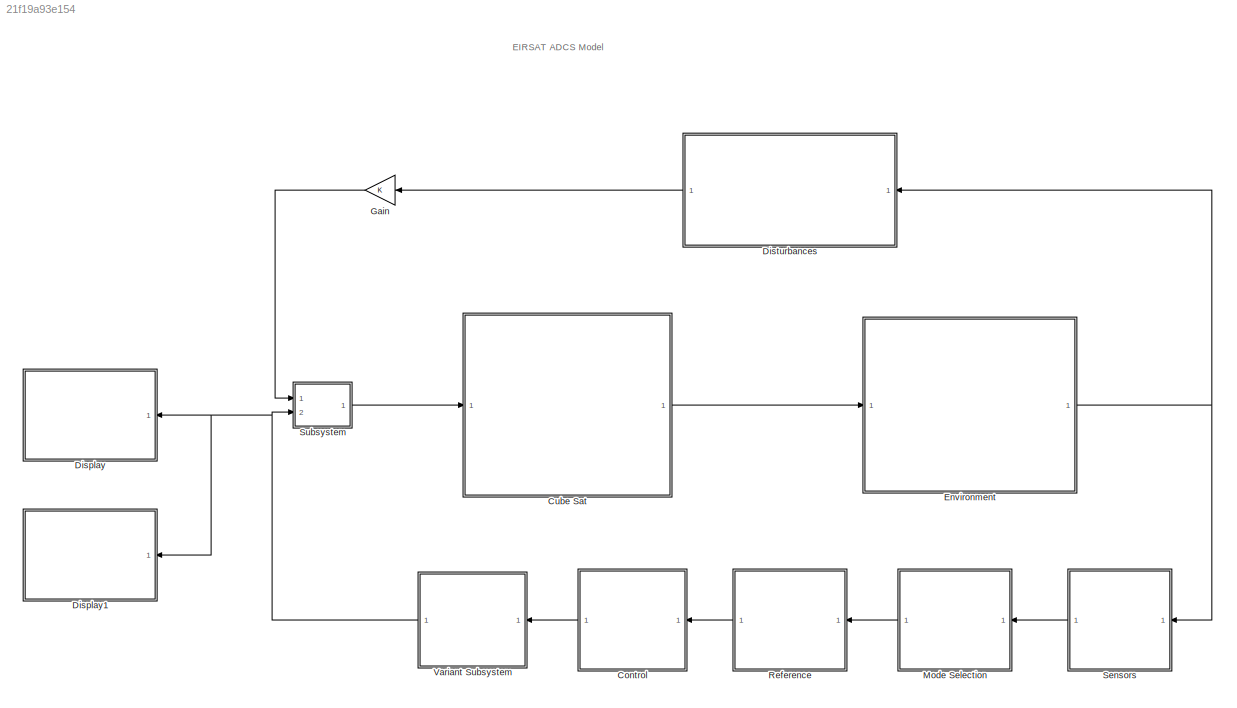
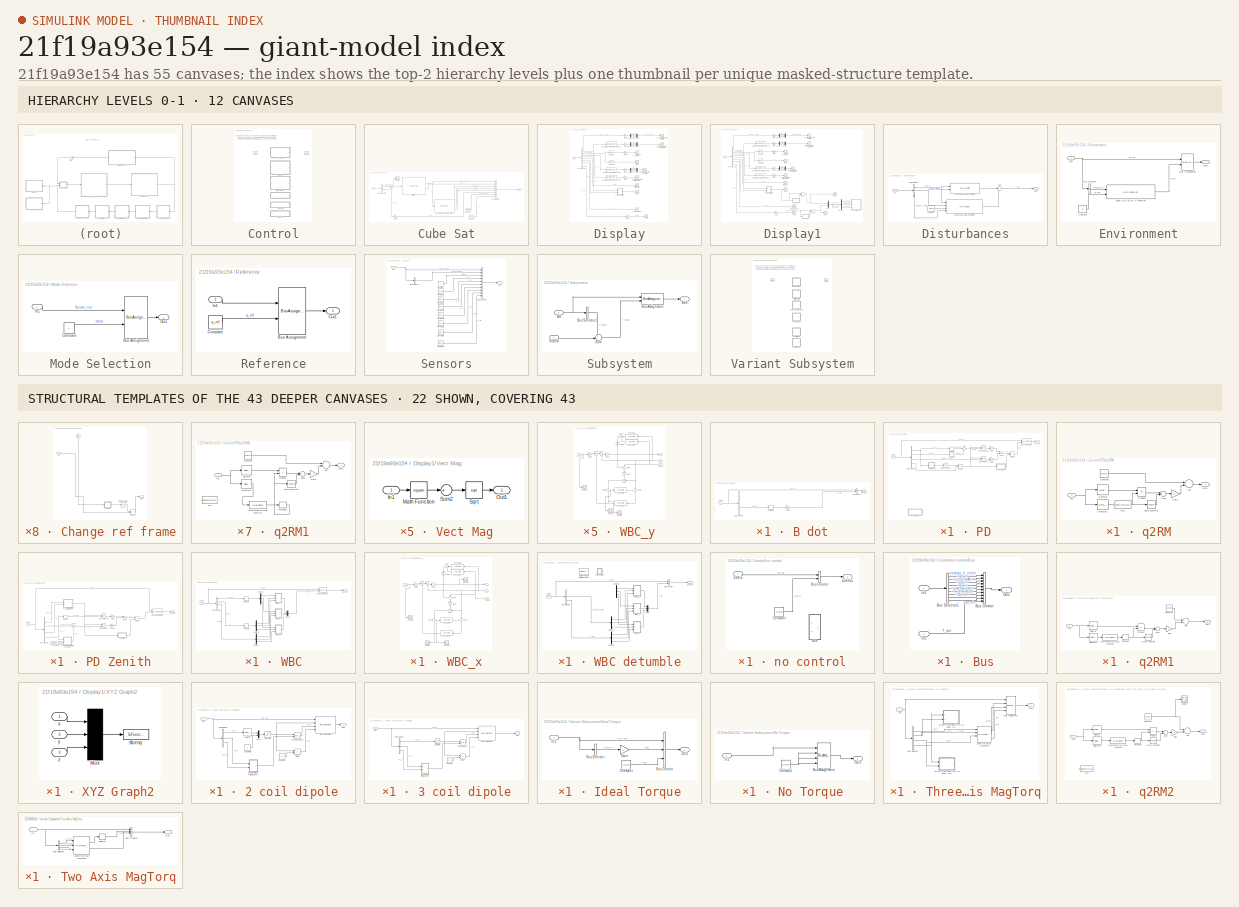
[diagram: thumbnail index - top-2 hierarchy levels (12 canvases) + 22 structural-template representatives of the remaining 43 canvases]
MODEL slx_21f19a93e154
KIND model
BLOCK [SubSystem] Control
  Ports = [1, 1]
  RequestExecContextInheritance = off
  Variant = on
BLOCK [SubSystem] Control/B dot
  Ports = [1, 1]
  RequestExecContextInheritance = off
  VariantControl = CtrlType==4
BLOCK [BusCreator] Control/B dot/Bus Creator
  DisplayOption = bar
  Inputs = 2
  Ports = [2, 1]
BLOCK [BusSelector] Control/B dot/Bus Selector
  OutputSignals = signal1.Sensor_out.Sensor_Values.qb_i,q_ref,signal1.Sensor_out.Sensor_Values.omega_b_inert,signal1.Sensor_out.Sensor_Values.B_real,signal1.Sensor_out.Actual_Values.Dyn_out.qb_o
  Ports = [1, 5]
BLOCK [Derivative] Control/B dot/Derivative
BLOCK [Gain] Control/B dot/Gain
  Gain = -k_bd
  OutDataTypeStr = Inherit: Inherit via internal rule
  ParamDataTypeStr = Inherit: Inherit via internal rule
  SaturateOnIntegerOverflow = off
BLOCK [Inport] Control/B dot/bus in
  IconDisplay = Port number
BLOCK [Outport] Control/B dot/bus out
  IconDisplay = Port number
BLOCK [SubSystem] Control/PD
  Ports = [1, 1]
  RequestExecContextInheritance = off
  VariantControl = CtrlType==2
BLOCK [SubSystem] Control/PD Zenith
  Ports = [1, 1]
  RequestExecContextInheritance = off
  VariantControl = CtrlType==3
BLOCK [SubSystem] Control/PD Zenith/B vect from inert frm to body frm
  Ports = [2, 1]
  RequestExecContextInheritance = off
BLOCK [Inport] Control/PD Zenith/B vect from inert frm to body frm/In1
  IconDisplay = Port number
BLOCK [Inport] Control/PD Zenith/B vect from inert frm to body frm/In2
  IconDisplay = Port number
  Port = 2
BLOCK [Math] Control/PD Zenith/B vect from inert frm to body frm/Math Function1
  Operator = transpose
  Ports = [1, 1]
BLOCK [Outport] Control/PD Zenith/B vect from inert frm to body frm/Out1
  IconDisplay = Port number
BLOCK [Product] Control/PD Zenith/B vect from inert frm to body frm/Product1
  InputSameDT = off
  Multiplication = Matrix(*)
  OutDataTypeStr = Inherit: Inherit via internal rule
  Ports = [2, 1]
  RndMeth = Floor
  SaturateOnIntegerOverflow = off
BLOCK [SubSystem] Control/PD Zenith/B vect from inert frm to body frm/q2RM2
  Ports = [1, 1]
  RequestExecContextInheritance = off
BLOCK [Sum] Control/PD Zenith/B vect from inert frm to body frm/q2RM2/Add
  InputSameDT = off
  OutDataTypeStr = Inherit: Inherit via internal rule
  Ports = [2, 1]
  SaturateOnIntegerOverflow = off
BLOCK [Constant] Control/PD Zenith/B vect from inert frm to body frm/q2RM2/Constant
  Value = eye(3)
BLOCK [Fcn] Control/PD Zenith/B vect from inert frm to body frm/q2RM2/Fcn
  Commented = on
  Expr = SkewSym([u(1),u(2),u(3)])
BLOCK [Gain] Control/PD Zenith/B vect from inert frm to body frm/q2RM2/Gain
  Gain = 2
  OutDataTypeStr = Inherit: Inherit via internal rule
  ParamDataTypeStr = Inherit: Inherit via internal rule
  SaturateOnIntegerOverflow = off
BLOCK [Inport] Control/PD Zenith/B vect from inert frm to body frm/q2RM2/In1
  IconDisplay = Port number
BLOCK [MATLABFcn] Control/PD Zenith/B vect from inert frm to body frm/q2RM2/Interpreted MATLAB Function
  MATLABFcn = SkewSym([u(1),u(2),u(3)],1)
  OutputDimensions = 9
  Ports = [1, 1]
BLOCK [Math] Control/PD Zenith/B vect from inert frm to body frm/q2RM2/Math Function
  Operator = square
  Ports = [1, 1]
BLOCK [Outport] Control/PD Zenith/B vect from inert frm to body frm/q2RM2/Out1
  IconDisplay = Port number
BLOCK [Product] Control/PD Zenith/B vect from inert frm to body frm/q2RM2/Product
  InputSameDT = off
  OutDataTypeStr = Inherit: Inherit via internal rule
  Ports = [2, 1]
  RndMeth = Floor
  SaturateOnIntegerOverflow = off
BLOCK [Reshape] Control/PD Zenith/B vect from inert frm to body frm/q2RM2/Reshape
  OutputDimensionality = Customize
  OutputDimensions = [3,3]
  Ports = [1, 1]
BLOCK [Selector] Control/PD Zenith/B vect from inert frm to body frm/q2RM2/Selector
  Indices = [1]
  InputPortWidth = 4
  Ports = [1, 1]
BLOCK [Selector] Control/PD Zenith/B vect from inert frm to body frm/q2RM2/Selector1
  Indices = [2 3 4]
  InputPortWidth = 4
  Ports = [1, 1]
BLOCK [Sum] Control/PD Zenith/B vect from inert frm to body frm/q2RM2/Sum
  InputSameDT = off
  OutDataTypeStr = Inherit: Inherit via internal rule
  Ports = [2, 1]
  SaturateOnIntegerOverflow = off
BLOCK [BusAssignment] Control/PD Zenith/Bus Assignment
  AssignedSignals = m_b
  Ports = [2, 1]
BLOCK [BusSelector] Control/PD Zenith/Bus Selector
  OutputSignals = Sensor_Values.qb_i,Sensor_Values.omega_b_inert,Sensor_Values.B_i,Actual_Values.qb_o
  Ports = [1, 4]
BLOCK [Constant] Control/PD Zenith/Constant
  Value = 1*omega_orbit
BLOCK [Reference] Control/PD Zenith/Cross Product  REF=vrlib/Utilities/Cross Product
  Ports = [2, 1]
  SourceBlock = vrlib/Utilities/Cross Product
  SourceType = Cross Product
BLOCK [Reference] Control/PD Zenith/Cross Product1  REF=vrlib/Utilities/Cross Product
  Ports = [2, 1]
  SourceBlock = vrlib/Utilities/Cross Product
  SourceType = Cross Product
BLOCK [Product] Control/PD Zenith/Divide
  InputSameDT = off
  Inputs = */
  OutDataTypeStr = Inherit: Inherit via internal rule
  Ports = [2, 1]
  RndMeth = Floor
  SaturateOnIntegerOverflow = off
BLOCK [Gain] Control/PD Zenith/Gain
  Gain = -kp
  OutDataTypeStr = Inherit: Inherit via internal rule
  ParamDataTypeStr = Inherit: Inherit via internal rule
  SaturateOnIntegerOverflow = off
BLOCK [Gain] Control/PD Zenith/Gain1
  Gain = -kd
  OutDataTypeStr = Inherit: Inherit via internal rule
  ParamDataTypeStr = Inherit: Inherit via internal rule
  SaturateOnIntegerOverflow = off
BLOCK [Selector] Control/PD Zenith/Selector
  Indices = [2 3 4]
  InputPortWidth = 4
  Ports = [1, 1]
BLOCK [Sum] Control/PD Zenith/Sum1
  InputSameDT = off
  OutDataTypeStr = Inherit: Inherit via internal rule
  Ports = [2, 1]
  SaturateOnIntegerOverflow = off
BLOCK [Sum] Control/PD Zenith/Sum2
  IconShape = round
  InputSameDT = off
  Inputs = |+-
  OutDataTypeStr = Inherit: Inherit via internal rule
  Ports = [2, 1]
  SaturateOnIntegerOverflow = off
BLOCK [SubSystem] Control/PD Zenith/Vect Mag
  Ports = [1, 1]
  RequestExecContextInheritance = off
BLOCK [Inport] Control/PD Zenith/Vect Mag/In1
  IconDisplay = Port number
BLOCK [Math] Control/PD Zenith/Vect Mag/Math Function
  Operator = square
  Ports = [1, 1]
BLOCK [Outport] Control/PD Zenith/Vect Mag/Out1
  IconDisplay = Port number
BLOCK [Sqrt] Control/PD Zenith/Vect Mag/Sqrt
BLOCK [Sum] Control/PD Zenith/Vect Mag/Sum2
  IconShape = round
  InputSameDT = off
  Inputs = +
  OutDataTypeStr = Inherit: Inherit via internal rule
  Ports = [1, 1]
  SaturateOnIntegerOverflow = off
BLOCK [Inport] Control/PD Zenith/bus in
  IconDisplay = Port number
BLOCK [Outport] Control/PD Zenith/bus out
  IconDisplay = Port number
BLOCK [SubSystem] Control/PD Zenith/omega orb from orb frm to body frm
  Ports = [2, 1]
  RequestExecContextInheritance = off
BLOCK [Inport] Control/PD Zenith/omega orb from orb frm to body frm/In1
  IconDisplay = Port number
BLOCK [Inport] Control/PD Zenith/omega orb from orb frm to body frm/In2
  IconDisplay = Port number
  Port = 2
BLOCK [Math] Control/PD Zenith/omega orb from orb frm to body frm/Math Function2
  Operator = transpose
  Ports = [1, 1]
BLOCK [Outport] Control/PD Zenith/omega orb from orb frm to body frm/Out1
  IconDisplay = Port number
BLOCK [Product] Control/PD Zenith/omega orb from orb frm to body frm/Product
  InputSameDT = off
  Multiplication = Matrix(*)
  OutDataTypeStr = Inherit: Inherit via internal rule
  Ports = [2, 1]
  RndMeth = Floor
  SaturateOnIntegerOverflow = off
BLOCK [SubSystem] Control/PD Zenith/omega orb from orb frm to body frm/q2RM1
  Ports = [1, 1]
  RequestExecContextInheritance = off
BLOCK [Sum] Control/PD Zenith/omega orb from orb frm to body frm/q2RM1/Add
  InputSameDT = off
  OutDataTypeStr = Inherit: Inherit via internal rule
  Ports = [2, 1]
  SaturateOnIntegerOverflow = off
BLOCK [Constant] Control/PD Zenith/omega orb from orb frm to body frm/q2RM1/Constant
  Value = eye(3)
BLOCK [Fcn] Control/PD Zenith/omega orb from orb frm to body frm/q2RM1/Fcn
  Commented = on
  Expr = SkewSym([u(1),u(2),u(3)])
BLOCK [Gain] Control/PD Zenith/omega orb from orb frm to body frm/q2RM1/Gain
  Gain = 2
  OutDataTypeStr = Inherit: Inherit via internal rule
  ParamDataTypeStr = Inherit: Inherit via internal rule
  SaturateOnIntegerOverflow = off
BLOCK [Inport] Control/PD Zenith/omega orb from orb frm to body frm/q2RM1/In1
  IconDisplay = Port number
BLOCK [MATLABFcn] Control/PD Zenith/omega orb from orb frm to body frm/q2RM1/Interpreted MATLAB Function
  MATLABFcn = SkewSym([u(1),u(2),u(3)],1)
  OutputDimensions = 9
  Ports = [1, 1]
BLOCK [Math] Control/PD Zenith/omega orb from orb frm to body frm/q2RM1/Math Function
  Operator = square
  Ports = [1, 1]
BLOCK [Outport] Control/PD Zenith/omega orb from orb frm to body frm/q2RM1/Out1
  IconDisplay = Port number
BLOCK [Product] Control/PD Zenith/omega orb from orb frm to body frm/q2RM1/Product
  InputSameDT = off
  OutDataTypeStr = Inherit: Inherit via internal rule
  Ports = [2, 1]
  RndMeth = Floor
  SaturateOnIntegerOverflow = off
BLOCK [Reshape] Control/PD Zenith/omega orb from orb frm to body frm/q2RM1/Reshape
  OutputDimensionality = Customize
  OutputDimensions = [3,3]
  Ports = [1, 1]
BLOCK [Selector] Control/PD Zenith/omega orb from orb frm to body frm/q2RM1/Selector
  Indices = [1]
  InputPortWidth = 4
  Ports = [1, 1]
BLOCK [Selector] Control/PD Zenith/omega orb from orb frm to body frm/q2RM1/Selector1
  Indices = [2 3 4]
  InputPortWidth = 4
  Ports = [1, 1]
BLOCK [Sum] Control/PD Zenith/omega orb from orb frm to body frm/q2RM1/Sum
  InputSameDT = off
  OutDataTypeStr = Inherit: Inherit via internal rule
  Ports = [2, 1]
  SaturateOnIntegerOverflow = off
BLOCK [BusAssignment] Control/PD/Bus Assignment
  AssignedSignals = m_b
  Ports = [2, 1]
BLOCK [BusSelector] Control/PD/Bus Selector
  OutputSignals = Sensor_Values.qb_i,q_ref,Sensor_Values.omega_b_inert,Sensor_Values.B_i
  Ports = [1, 4]
BLOCK [Reference] Control/PD/Cross Product  REF=vrlib/Utilities/Cross Product
  Ports = [2, 1]
  SourceBlock = vrlib/Utilities/Cross Product
  SourceType = Cross Product
BLOCK [Reference] Control/PD/Cross Product1  REF=vrlib/Utilities/Cross Product
  Ports = [2, 1]
  SourceBlock = vrlib/Utilities/Cross Product
  SourceType = Cross Product
BLOCK [Product] Control/PD/Divide
  InputSameDT = off
  Inputs = */
  OutDataTypeStr = Inherit: Inherit via internal rule
  Ports = [2, 1]
  RndMeth = Floor
  SaturateOnIntegerOverflow = off
BLOCK [Gain] Control/PD/Gain
  Gain = -kp
  OutDataTypeStr = Inherit: Inherit via internal rule
  ParamDataTypeStr = Inherit: Inherit via internal rule
  SaturateOnIntegerOverflow = off
BLOCK [Gain] Control/PD/Gain1
  Gain = -kd
  OutDataTypeStr = Inherit: Inherit via internal rule
  ParamDataTypeStr = Inherit: Inherit via internal rule
  SaturateOnIntegerOverflow = off
BLOCK [Math] Control/PD/Math Function2
  Operator = transpose
  Ports = [1, 1]
BLOCK [Product] Control/PD/Product
  InputSameDT = off
  Multiplication = Matrix(*)
  OutDataTypeStr = Inherit: Inherit via internal rule
  Ports = [2, 1]
  RndMeth = Floor
  SaturateOnIntegerOverflow = off
BLOCK [Selector] Control/PD/Selector
  Indices = [2 3 4]
  InputPortWidth = 4
  Ports = [1, 1]
BLOCK [Selector] Control/PD/Selector1
  Indices = [2 3 4]
  InputPortWidth = 4
  Ports = [1, 1]
BLOCK [Sum] Control/PD/Sum
  IconShape = round
  InputSameDT = off
  Inputs = |+-
  OutDataTypeStr = Inherit: Inherit via internal rule
  Ports = [2, 1]
  SaturateOnIntegerOverflow = off
BLOCK [Sum] Control/PD/Sum1
  InputSameDT = off
  OutDataTypeStr = Inherit: Inherit via internal rule
  Ports = [2, 1]
  SaturateOnIntegerOverflow = off
BLOCK [SubSystem] Control/PD/Vect Mag
  Ports = [1, 1]
  RequestExecContextInheritance = off
BLOCK [Inport] Control/PD/Vect Mag/In1
  IconDisplay = Port number
BLOCK [Math] Control/PD/Vect Mag/Math Function
  Operator = square
  Ports = [1, 1]
BLOCK [Outport] Control/PD/Vect Mag/Out1
  IconDisplay = Port number
BLOCK [Sqrt] Control/PD/Vect Mag/Sqrt
BLOCK [Sum] Control/PD/Vect Mag/Sum2
  IconShape = round
  InputSameDT = off
  Inputs = +
  OutDataTypeStr = Inherit: Inherit via internal rule
  Ports = [1, 1]
  SaturateOnIntegerOverflow = off
BLOCK [Inport] Control/PD/bus in
  IconDisplay = Port number
BLOCK [Outport] Control/PD/bus out
  IconDisplay = Port number
BLOCK [SubSystem] Control/PD/q2RM
  Commented = on
  Ports = [1, 1]
  RequestExecContextInheritance = off
BLOCK [Sum] Control/PD/q2RM/Add
  InputSameDT = off
  OutDataTypeStr = Inherit: Inherit via internal rule
  Ports = [2, 1]
  SaturateOnIntegerOverflow = off
BLOCK [Constant] Control/PD/q2RM/Constant
  Value = eye(3)
BLOCK [Fcn] Control/PD/q2RM/Fcn1
  Expr = SkewSym([u(1),u(2),u(3)])
BLOCK [Gain] Control/PD/q2RM/Gain
  OutDataTypeStr = Inherit: Inherit via internal rule
  ParamDataTypeStr = Inherit: Inherit via internal rule
  SaturateOnIntegerOverflow = off
BLOCK [Inport] Control/PD/q2RM/In1
  IconDisplay = Port number
BLOCK [Math] Control/PD/q2RM/Math Function
  Operator = square
  Ports = [1, 1]
BLOCK [Outport] Control/PD/q2RM/Out1
  IconDisplay = Port number
BLOCK [Product] Control/PD/q2RM/Product
  InputSameDT = off
  OutDataTypeStr = Inherit: Inherit via internal rule
  Ports = [2, 1]
  RndMeth = Floor
  SaturateOnIntegerOverflow = off
BLOCK [Selector] Control/PD/q2RM/Selector
  Indices = [1]
  InputPortWidth = 4
  Ports = [1, 1]
BLOCK [Selector] Control/PD/q2RM/Selector1
  Indices = [2 3 4]
  InputPortWidth = 4
  Ports = [1, 1]
BLOCK [Sum] Control/PD/q2RM/Sum
  InputSameDT = off
  OutDataTypeStr = Inherit: Inherit via internal rule
  Ports = [2, 1]
  SaturateOnIntegerOverflow = off
BLOCK [SubSystem] Control/PD/q2RM1
  Ports = [1, 1]
  RequestExecContextInheritance = off
BLOCK [Sum] Control/PD/q2RM1/Add
  InputSameDT = off
  OutDataTypeStr = Inherit: Inherit via internal rule
  Ports = [2, 1]
  SaturateOnIntegerOverflow = off
BLOCK [Constant] Control/PD/q2RM1/Constant
  Value = eye(3)
BLOCK [Fcn] Control/PD/q2RM1/Fcn
  Commented = on
  Expr = SkewSym([u(1),u(2),u(3)])
BLOCK [Gain] Control/PD/q2RM1/Gain
  Gain = 2
  OutDataTypeStr = Inherit: Inherit via internal rule
  ParamDataTypeStr = Inherit: Inherit via internal rule
  SaturateOnIntegerOverflow = off
BLOCK [Inport] Control/PD/q2RM1/In1
  IconDisplay = Port number
BLOCK [MATLABFcn] Control/PD/q2RM1/Interpreted MATLAB Function
  MATLABFcn = SkewSym([u(1),u(2),u(3)],1)
  OutputDimensions = 9
  Ports = [1, 1]
BLOCK [Math] Control/PD/q2RM1/Math Function
  Operator = square
  Ports = [1, 1]
BLOCK [Outport] Control/PD/q2RM1/Out1
  IconDisplay = Port number
BLOCK [Product] Control/PD/q2RM1/Product
  InputSameDT = off
  OutDataTypeStr = Inherit: Inherit via internal rule
  Ports = [2, 1]
  RndMeth = Floor
  SaturateOnIntegerOverflow = off
BLOCK [Reshape] Control/PD/q2RM1/Reshape
  OutputDimensionality = Customize
  OutputDimensions = [3,3]
  Ports = [1, 1]
BLOCK [Selector] Control/PD/q2RM1/Selector
  Indices = [1]
  InputPortWidth = 4
  Ports = [1, 1]
BLOCK [Selector] Control/PD/q2RM1/Selector1
  Indices = [2 3 4]
  InputPortWidth = 4
  Ports = [1, 1]
BLOCK [Sum] Control/PD/q2RM1/Sum
  InputSameDT = off
  OutDataTypeStr = Inherit: Inherit via internal rule
  Ports = [2, 1]
  SaturateOnIntegerOverflow = off
BLOCK [SubSystem] Control/WBC
  Ports = [1, 1]
  RequestExecContextInheritance = off
  VariantControl = CtrlType==1
BLOCK [SubSystem] Control/WBC detumble
  Ports = [1, 1]
  RequestExecContextInheritance = off
  VariantControl = CtrlType==5
BLOCK [BusCreator] Control/WBC detumble/Bus Creator
  DisplayOption = bar
  Inputs = 2
  Ports = [2, 1]
BLOCK [BusSelector] Control/WBC detumble/Bus Selector
  OutputSignals = q_ref,signal1.Sensor_out.Sensor_values.omega_b_inert,signal1.Sensor_out.Enviro_out.Dyn_out.T_ctrlr
  Ports = [1, 3]
BLOCK [Demux] Control/WBC detumble/Demux1
  DisplayOption = bar
  Outputs = 3
  Ports = [1, 3]
BLOCK [Demux] Control/WBC detumble/Demux3
  DisplayOption = bar
  Outputs = 3
  Ports = [1, 3]
BLOCK [Demux] Control/WBC detumble/Demux4
  DisplayOption = bar
  Outputs = 3
  Ports = [1, 3]
BLOCK [Mux] Control/WBC detumble/Mux4
  DisplayOption = bar
  Inputs = 3
  Ports = [3, 1]
BLOCK [Reference] Control/WBC detumble/Quaternions to Rotation Angles  REF=aerolibtransform2/Quaternions to Rotation Angles
  AttributesFormatString = Rotation Order: %<rotationOrder>
  Commented = on
  Ports = [1, 1]
  SourceBlock = aerolibtransform2/Quaternions to Rotation Angles
  SourceType = Quat2Ang
  rotationOrder = ZYX
BLOCK [SubSystem] Control/WBC detumble/Vector Mag1
  Commented = on
  Ports = [1, 1]
  RequestExecContextInheritance = off
BLOCK [Math] Control/WBC detumble/Vector Mag1/Math Function2
  Operator = square
  Ports = [1, 1]
BLOCK [Sqrt] Control/WBC detumble/Vector Mag1/Sqrt2
BLOCK [Sum] Control/WBC detumble/Vector Mag1/Sum2
  IconShape = round
  InputSameDT = off
  Inputs = +
  OutDataTypeStr = Inherit: Inherit via internal rule
  Ports = [1, 1]
  SaturateOnIntegerOverflow = off
BLOCK [Outport] Control/WBC detumble/Vector Mag1/m
  IconDisplay = Port number
BLOCK [Inport] Control/WBC detumble/Vector Mag1/v
  IconDisplay = Port number
BLOCK [SubSystem] Control/WBC detumble/WBC_x
  Ports = [3, 1]
  RequestExecContextInheritance = off
BLOCK [Gain] Control/WBC detumble/WBC_x/Gain1
  Gain = 1/k
  OutDataTypeStr = Inherit: Inherit via internal rule
  ParamDataTypeStr = Inherit: Inherit via internal rule
  SaturateOnIntegerOverflow = off
BLOCK [Gain] Control/WBC detumble/WBC_x/Gain2
  Gain = distrej
  OutDataTypeStr = Inherit: Inherit via internal rule
  ParamDataTypeStr = Inherit: Inherit via internal rule
  SaturateOnIntegerOverflow = off
BLOCK [Gain] Control/WBC detumble/WBC_x/Gain5
  Gain = 0.5
  OutDataTypeStr = Inherit: Inherit via internal rule
  ParamDataTypeStr = Inherit: Inherit via internal rule
  SaturateOnIntegerOverflow = off
BLOCK [Gain] Control/WBC detumble/WBC_x/Gain6
  Gain = k
  OutDataTypeStr = Inherit: Inherit via internal rule
  ParamDataTypeStr = Inherit: Inherit via internal rule
  SaturateOnIntegerOverflow = off
BLOCK [Reference] Control/WBC detumble/WBC_x/LTI System  REF=cstblocks/LTI System
  IC = []
  Ports = [1, 1]
  SourceBlock = cstblocks/LTI System
  SourceType = LTI Block
  sys = G
BLOCK [Reference] Control/WBC detumble/WBC_x/LTI System1  REF=cstblocks/LTI System
  IC = []
  Ports = [1, 1]
  SourceBlock = cstblocks/LTI System
  SourceType = LTI Block
  sys = G
BLOCK [Reference] Control/WBC detumble/WBC_x/LTI System2  REF=cstblocks/LTI System
  IC = []
  Ports = [1, 1]
  SourceBlock = cstblocks/LTI System
  SourceType = LTI Block
  sys = adr(1)
BLOCK [Reference] Control/WBC detumble/WBC_x/LTI System3  REF=cstblocks/LTI System
  IC = []
  Ports = [1, 1]
  SourceBlock = cstblocks/LTI System
  SourceType = LTI Block
  sys = adr(2)
BLOCK [Scope] Control/WBC detumble/WBC_x/Scope
  Floating = off
  NumInputPorts = 1
  Ports = [1]
  ShowLegends = off
BLOCK [Scope] Control/WBC detumble/WBC_x/Scope1
  Floating = off
  NumInputPorts = 1
  Ports = [1]
  ShowLegends = off
BLOCK [Scope] Control/WBC detumble/WBC_x/Scope2
  Floating = off
  NumInputPorts = 1
  Ports = [1]
  ShowLegends = off
BLOCK [Sum] Control/WBC detumble/WBC_x/Sum1
  IconShape = round
  InputSameDT = off
  Inputs = ++|
  OutDataTypeStr = Inherit: Inherit via internal rule
  Ports = [2, 1]
  SaturateOnIntegerOverflow = off
BLOCK [Sum] Control/WBC detumble/WBC_x/Sum2
  IconShape = round
  InputSameDT = off
  Inputs = |++
  OutDataTypeStr = Inherit: Inherit via internal rule
  Ports = [2, 1]
  SaturateOnIntegerOverflow = off
BLOCK [Sum] Control/WBC detumble/WBC_x/Sum3
  IconShape = round
  InputSameDT = off
  Inputs = ++|
  OutDataTypeStr = Inherit: Inherit via internal rule
  Ports = [2, 1]
  SaturateOnIntegerOverflow = off
BLOCK [Sum] Control/WBC detumble/WBC_x/Sum4
  IconShape = round
  InputSameDT = off
  Inputs = +|-
  OutDataTypeStr = Inherit: Inherit via internal rule
  Ports = [2, 1]
  SaturateOnIntegerOverflow = off
BLOCK [Sum] Control/WBC detumble/WBC_x/Sum5
  IconShape = round
  InputSameDT = off
  Inputs = -+|
  OutDataTypeStr = Inherit: Inherit via internal rule
  Ports = [2, 1]
  SaturateOnIntegerOverflow = off
BLOCK [Sum] Control/WBC detumble/WBC_x/Sum6
  IconShape = round
  InputSameDT = off
  Inputs = |++
  OutDataTypeStr = Inherit: Inherit via internal rule
  Ports = [2, 1]
  SaturateOnIntegerOverflow = off
BLOCK [Sum] Control/WBC detumble/WBC_x/Sum9
  IconShape = round
  InputSameDT = off
  Inputs = |+-
  OutDataTypeStr = Inherit: Inherit via internal rule
  Ports = [2, 1]
  SaturateOnIntegerOverflow = off
BLOCK [Outport] Control/WBC detumble/WBC_x/T
  IconDisplay = Port number
BLOCK [Inport] Control/WBC detumble/WBC_x/T_meas
  IconDisplay = Port number
  Port = 3
BLOCK [Inport] Control/WBC detumble/WBC_x/x_0_ref
  IconDisplay = Port number
BLOCK [Inport] Control/WBC detumble/WBC_x/x_1
  IconDisplay = Port number
  Port = 2
BLOCK [SubSystem] Control/WBC detumble/WBC_y
  Ports = [3, 1]
  RequestExecContextInheritance = off
BLOCK [Gain] Control/WBC detumble/WBC_y/Gain1
  Gain = 1/k
  OutDataTypeStr = Inherit: Inherit via internal rule
  ParamDataTypeStr = Inherit: Inherit via internal rule
  SaturateOnIntegerOverflow = off
BLOCK [Gain] Control/WBC detumble/WBC_y/Gain2
  Gain = distrej
  OutDataTypeStr = Inherit: Inherit via internal rule
  ParamDataTypeStr = Inherit: Inherit via internal rule
  SaturateOnIntegerOverflow = off
BLOCK [Gain] Control/WBC detumble/WBC_y/Gain5
  Gain = 0.5
  OutDataTypeStr = Inherit: Inherit via internal rule
  ParamDataTypeStr = Inherit: Inherit via internal rule
  SaturateOnIntegerOverflow = off
BLOCK [Gain] Control/WBC detumble/WBC_y/Gain6
  Gain = k
  OutDataTypeStr = Inherit: Inherit via internal rule
  ParamDataTypeStr = Inherit: Inherit via internal rule
  SaturateOnIntegerOverflow = off
BLOCK [Reference] Control/WBC detumble/WBC_y/LTI System  REF=cstblocks/LTI System
  IC = []
  Ports = [1, 1]
  SourceBlock = cstblocks/LTI System
  SourceType = LTI Block
  sys = G
BLOCK [Reference] Control/WBC detumble/WBC_y/LTI System1  REF=cstblocks/LTI System
  IC = []
  Ports = [1, 1]
  SourceBlock = cstblocks/LTI System
  SourceType = LTI Block
  sys = G
BLOCK [Reference] Control/WBC detumble/WBC_y/LTI System2  REF=cstblocks/LTI System
  IC = []
  Ports = [1, 1]
  SourceBlock = cstblocks/LTI System
  SourceType = LTI Block
  sys = adr(1)
BLOCK [Reference] Control/WBC detumble/WBC_y/LTI System3  REF=cstblocks/LTI System
  IC = []
  Ports = [1, 1]
  SourceBlock = cstblocks/LTI System
  SourceType = LTI Block
  sys = adr(2)
BLOCK [Scope] Control/WBC detumble/WBC_y/Scope
  Floating = off
  NumInputPorts = 1
  Ports = [1]
  ShowLegends = off
BLOCK [Scope] Control/WBC detumble/WBC_y/Scope1
  Floating = off
  NumInputPorts = 1
  Ports = [1]
  ShowLegends = off
BLOCK [Scope] Control/WBC detumble/WBC_y/Scope2
  Floating = off
  NumInputPorts = 1
  Ports = [1]
  ShowLegends = off
BLOCK [Sum] Control/WBC detumble/WBC_y/Sum1
  IconShape = round
  InputSameDT = off
  Inputs = ++|
  OutDataTypeStr = Inherit: Inherit via internal rule
  Ports = [2, 1]
  SaturateOnIntegerOverflow = off
BLOCK [Sum] Control/WBC detumble/WBC_y/Sum2
  IconShape = round
  InputSameDT = off
  Inputs = |++
  OutDataTypeStr = Inherit: Inherit via internal rule
  Ports = [2, 1]
  SaturateOnIntegerOverflow = off
BLOCK [Sum] Control/WBC detumble/WBC_y/Sum3
  IconShape = round
  InputSameDT = off
  Inputs = ++|
  OutDataTypeStr = Inherit: Inherit via internal rule
  Ports = [2, 1]
  SaturateOnIntegerOverflow = off
BLOCK [Sum] Control/WBC detumble/WBC_y/Sum4
  IconShape = round
  InputSameDT = off
  Inputs = +|-
  OutDataTypeStr = Inherit: Inherit via internal rule
  Ports = [2, 1]
  SaturateOnIntegerOverflow = off
BLOCK [Sum] Control/WBC detumble/WBC_y/Sum5
  IconShape = round
  InputSameDT = off
  Inputs = -+|
  OutDataTypeStr = Inherit: Inherit via internal rule
  Ports = [2, 1]
  SaturateOnIntegerOverflow = off
BLOCK [Sum] Control/WBC detumble/WBC_y/Sum6
  IconShape = round
  InputSameDT = off
  Inputs = |++
  OutDataTypeStr = Inherit: Inherit via internal rule
  Ports = [2, 1]
  SaturateOnIntegerOverflow = off
BLOCK [Sum] Control/WBC detumble/WBC_y/Sum9
  IconShape = round
  InputSameDT = off
  Inputs = |+-
  OutDataTypeStr = Inherit: Inherit via internal rule
  Ports = [2, 1]
  SaturateOnIntegerOverflow = off
BLOCK [Outport] Control/WBC detumble/WBC_y/T
  IconDisplay = Port number
BLOCK [Inport] Control/WBC detumble/WBC_y/T_meas
  IconDisplay = Port number
  Port = 3
BLOCK [Inport] Control/WBC detumble/WBC_y/x_0_ref
  IconDisplay = Port number
BLOCK [Inport] Control/WBC detumble/WBC_y/x_1
  IconDisplay = Port number
  Port = 2
BLOCK [SubSystem] Control/WBC detumble/WBC_z
  Ports = [3, 1]
  RequestExecContextInheritance = off
BLOCK [Gain] Control/WBC detumble/WBC_z/Gain1
  Gain = 1/k2
  OutDataTypeStr = Inherit: Inherit via internal rule
  ParamDataTypeStr = Inherit: Inherit via internal rule
  SaturateOnIntegerOverflow = off
BLOCK [Gain] Control/WBC detumble/WBC_z/Gain2
  Gain = distrej
  OutDataTypeStr = Inherit: Inherit via internal rule
  ParamDataTypeStr = Inherit: Inherit via internal rule
  SaturateOnIntegerOverflow = off
BLOCK [Gain] Control/WBC detumble/WBC_z/Gain5
  Gain = 0.5
  OutDataTypeStr = Inherit: Inherit via internal rule
  ParamDataTypeStr = Inherit: Inherit via internal rule
  SaturateOnIntegerOverflow = off
BLOCK [Gain] Control/WBC detumble/WBC_z/Gain6
  Gain = k2
  OutDataTypeStr = Inherit: Inherit via internal rule
  ParamDataTypeStr = Inherit: Inherit via internal rule
  SaturateOnIntegerOverflow = off
BLOCK [Reference] Control/WBC detumble/WBC_z/LTI System  REF=cstblocks/LTI System
  IC = []
  Ports = [1, 1]
  SourceBlock = cstblocks/LTI System
  SourceType = LTI Block
  sys = G2
BLOCK [Reference] Control/WBC detumble/WBC_z/LTI System1  REF=cstblocks/LTI System
  IC = []
  Ports = [1, 1]
  SourceBlock = cstblocks/LTI System
  SourceType = LTI Block
  sys = G2
BLOCK [Reference] Control/WBC detumble/WBC_z/LTI System2  REF=cstblocks/LTI System
  IC = []
  Ports = [1, 1]
  SourceBlock = cstblocks/LTI System
  SourceType = LTI Block
  sys = adr2(1)
BLOCK [Reference] Control/WBC detumble/WBC_z/LTI System3  REF=cstblocks/LTI System
  IC = []
  Ports = [1, 1]
  SourceBlock = cstblocks/LTI System
  SourceType = LTI Block
  sys = adr2(2)
BLOCK [Scope] Control/WBC detumble/WBC_z/Scope
  Floating = off
  NumInputPorts = 1
  Ports = [1]
  ShowLegends = off
BLOCK [Scope] Control/WBC detumble/WBC_z/Scope1
  Floating = off
  NumInputPorts = 1
  Ports = [1]
  ShowLegends = off
BLOCK [Scope] Control/WBC detumble/WBC_z/Scope2
  Floating = off
  NumInputPorts = 1
  Ports = [1]
  ShowLegends = off
BLOCK [Sum] Control/WBC detumble/WBC_z/Sum1
  IconShape = round
  InputSameDT = off
  Inputs = ++|
  OutDataTypeStr = Inherit: Inherit via internal rule
  Ports = [2, 1]
  SaturateOnIntegerOverflow = off
BLOCK [Sum] Control/WBC detumble/WBC_z/Sum2
  IconShape = round
  InputSameDT = off
  Inputs = |++
  OutDataTypeStr = Inherit: Inherit via internal rule
  Ports = [2, 1]
  SaturateOnIntegerOverflow = off
BLOCK [Sum] Control/WBC detumble/WBC_z/Sum3
  IconShape = round
  InputSameDT = off
  Inputs = ++|
  OutDataTypeStr = Inherit: Inherit via internal rule
  Ports = [2, 1]
  SaturateOnIntegerOverflow = off
BLOCK [Sum] Control/WBC detumble/WBC_z/Sum4
  IconShape = round
  InputSameDT = off
  Inputs = +|-
  OutDataTypeStr = Inherit: Inherit via internal rule
  Ports = [2, 1]
  SaturateOnIntegerOverflow = off
BLOCK [Sum] Control/WBC detumble/WBC_z/Sum5
  IconShape = round
  InputSameDT = off
  Inputs = -+|
  OutDataTypeStr = Inherit: Inherit via internal rule
  Ports = [2, 1]
  SaturateOnIntegerOverflow = off
BLOCK [Sum] Control/WBC detumble/WBC_z/Sum6
  IconShape = round
  InputSameDT = off
  Inputs = |++
  OutDataTypeStr = Inherit: Inherit via internal rule
  Ports = [2, 1]
  SaturateOnIntegerOverflow = off
BLOCK [Sum] Control/WBC detumble/WBC_z/Sum9
  IconShape = round
  InputSameDT = off
  Inputs = |+-
  OutDataTypeStr = Inherit: Inherit via internal rule
  Ports = [2, 1]
  SaturateOnIntegerOverflow = off
BLOCK [Outport] Control/WBC detumble/WBC_z/T
  IconDisplay = Port number
BLOCK [Inport] Control/WBC detumble/WBC_z/T_meas
  IconDisplay = Port number
  Port = 3
BLOCK [Inport] Control/WBC detumble/WBC_z/x_0_ref
  IconDisplay = Port number
BLOCK [Inport] Control/WBC detumble/WBC_z/x_1
  IconDisplay = Port number
  Port = 2
BLOCK [Inport] Control/WBC detumble/bus in
  IconDisplay = Port number
BLOCK [Outport] Control/WBC detumble/bus out
  IconDisplay = Port number
BLOCK [BusAssignment] Control/WBC/Bus Assignment
  AssignedSignals = T_ctrlr
  Ports = [2, 1]
BLOCK [BusSelector] Control/WBC/Bus Selector
  OutputSignals = q_ref,Sensor_Values.qb_i,Actual_Values.T_ctrlr,Sensor_Values.B_i
  Ports = [1, 4]
BLOCK [Demux] Control/WBC/Demux1
  DisplayOption = bar
  Outputs = 3
  Ports = [1, 3]
BLOCK [Demux] Control/WBC/Demux3
  DisplayOption = bar
  Outputs = 3
  Ports = [1, 3]
BLOCK [Demux] Control/WBC/Demux4
  DisplayOption = bar
  Outputs = 3
  Ports = [1, 3]
BLOCK [Mux] Control/WBC/Mux4
  DisplayOption = bar
  Inputs = 3
  Ports = [3, 1]
BLOCK [Selector] Control/WBC/Selector
  Indices = [2 3 4]
  InputPortWidth = 4
  Ports = [1, 1]
BLOCK [Selector] Control/WBC/Selector1
  Indices = [2 3 4]
  InputPortWidth = 4
  Ports = [1, 1]
BLOCK [SubSystem] Control/WBC/WBC_x
  Ports = [3, 1]
  RequestExecContextInheritance = off
BLOCK [Gain] Control/WBC/WBC_x/Gain1
  Gain = 1/k
  OutDataTypeStr = Inherit: Inherit via internal rule
  ParamDataTypeStr = Inherit: Inherit via internal rule
  SaturateOnIntegerOverflow = off
BLOCK [Gain] Control/WBC/WBC_x/Gain2
  Gain = distrej
  OutDataTypeStr = Inherit: Inherit via internal rule
  ParamDataTypeStr = Inherit: Inherit via internal rule
  SaturateOnIntegerOverflow = off
BLOCK [Gain] Control/WBC/WBC_x/Gain5
  Gain = 0.5
  OutDataTypeStr = Inherit: Inherit via internal rule
  ParamDataTypeStr = Inherit: Inherit via internal rule
  SaturateOnIntegerOverflow = off
BLOCK [Gain] Control/WBC/WBC_x/Gain6
  Gain = k
  OutDataTypeStr = Inherit: Inherit via internal rule
  ParamDataTypeStr = Inherit: Inherit via internal rule
  SaturateOnIntegerOverflow = off
BLOCK [Reference] Control/WBC/WBC_x/LTI System  REF=cstblocks/LTI System
  IC = []
  Ports = [1, 1]
  SourceBlock = cstblocks/LTI System
  SourceType = LTI Block
  sys = G
BLOCK [Reference] Control/WBC/WBC_x/LTI System1  REF=cstblocks/LTI System
  IC = []
  Ports = [1, 1]
  SourceBlock = cstblocks/LTI System
  SourceType = LTI Block
  sys = G
BLOCK [Reference] Control/WBC/WBC_x/LTI System2  REF=cstblocks/LTI System
  IC = []
  Ports = [1, 1]
  SourceBlock = cstblocks/LTI System
  SourceType = LTI Block
  sys = adr(1)
BLOCK [Reference] Control/WBC/WBC_x/LTI System3  REF=cstblocks/LTI System
  IC = []
  Ports = [1, 1]
  SourceBlock = cstblocks/LTI System
  SourceType = LTI Block
  sys = adr(2)
BLOCK [Scope] Control/WBC/WBC_x/Scope
  Floating = off
  NumInputPorts = 1
  Ports = [1]
  ShowLegends = off
BLOCK [Scope] Control/WBC/WBC_x/Scope1
  Floating = off
  NumInputPorts = 1
  Ports = [1]
  ShowLegends = off
BLOCK [Scope] Control/WBC/WBC_x/Scope2
  Floating = off
  NumInputPorts = 1
  Ports = [1]
  ShowLegends = off
  ZoomMode = yonly
BLOCK [Scope] Control/WBC/WBC_x/Scope3
  Floating = off
  NumInputPorts = 1
  Ports = [1]
  SaveName = ScopeData1
  ShowLegends = off
  ZoomMode = yonly
BLOCK [Sum] Control/WBC/WBC_x/Sum1
  IconShape = round
  InputSameDT = off
  Inputs = ++|
  OutDataTypeStr = Inherit: Inherit via internal rule
  Ports = [2, 1]
  SaturateOnIntegerOverflow = off
BLOCK [Sum] Control/WBC/WBC_x/Sum2
  IconShape = round
  InputSameDT = off
  Inputs = |++
  OutDataTypeStr = Inherit: Inherit via internal rule
  Ports = [2, 1]
  SaturateOnIntegerOverflow = off
BLOCK [Sum] Control/WBC/WBC_x/Sum3
  IconShape = round
  InputSameDT = off
  Inputs = ++|
  OutDataTypeStr = Inherit: Inherit via internal rule
  Ports = [2, 1]
  SaturateOnIntegerOverflow = off
BLOCK [Sum] Control/WBC/WBC_x/Sum4
  IconShape = round
  InputSameDT = off
  Inputs = +|-
  OutDataTypeStr = Inherit: Inherit via internal rule
  Ports = [2, 1]
  SaturateOnIntegerOverflow = off
BLOCK [Sum] Control/WBC/WBC_x/Sum5
  IconShape = round
  InputSameDT = off
  Inputs = -+|
  OutDataTypeStr = Inherit: Inherit via internal rule
  Ports = [2, 1]
  SaturateOnIntegerOverflow = off
BLOCK [Sum] Control/WBC/WBC_x/Sum6
  IconShape = round
  InputSameDT = off
  Inputs = |++
  OutDataTypeStr = Inherit: Inherit via internal rule
  Ports = [2, 1]
  SaturateOnIntegerOverflow = off
BLOCK [Sum] Control/WBC/WBC_x/Sum9
  IconShape = round
  InputSameDT = off
  Inputs = |+-
  OutDataTypeStr = Inherit: Inherit via internal rule
  Ports = [2, 1]
  SaturateOnIntegerOverflow = off
BLOCK [Outport] Control/WBC/WBC_x/T
  IconDisplay = Port number
BLOCK [Inport] Control/WBC/WBC_x/T_meas
  IconDisplay = Port number
  Port = 3
BLOCK [Inport] Control/WBC/WBC_x/x_0_ref
  IconDisplay = Port number
BLOCK [Inport] Control/WBC/WBC_x/x_1
  IconDisplay = Port number
  Port = 2
BLOCK [SubSystem] Control/WBC/WBC_y
  Ports = [3, 1]
  RequestExecContextInheritance = off
BLOCK [Gain] Control/WBC/WBC_y/Gain1
  Gain = 1/k
  OutDataTypeStr = Inherit: Inherit via internal rule
  ParamDataTypeStr = Inherit: Inherit via internal rule
  SaturateOnIntegerOverflow = off
BLOCK [Gain] Control/WBC/WBC_y/Gain2
  Gain = distrej
  OutDataTypeStr = Inherit: Inherit via internal rule
  ParamDataTypeStr = Inherit: Inherit via internal rule
  SaturateOnIntegerOverflow = off
BLOCK [Gain] Control/WBC/WBC_y/Gain5
  Gain = 0.5
  OutDataTypeStr = Inherit: Inherit via internal rule
  ParamDataTypeStr = Inherit: Inherit via internal rule
  SaturateOnIntegerOverflow = off
BLOCK [Gain] Control/WBC/WBC_y/Gain6
  Gain = k
  OutDataTypeStr = Inherit: Inherit via internal rule
  ParamDataTypeStr = Inherit: Inherit via internal rule
  SaturateOnIntegerOverflow = off
BLOCK [Reference] Control/WBC/WBC_y/LTI System  REF=cstblocks/LTI System
  IC = []
  Ports = [1, 1]
  SourceBlock = cstblocks/LTI System
  SourceType = LTI Block
  sys = G
BLOCK [Reference] Control/WBC/WBC_y/LTI System1  REF=cstblocks/LTI System
  IC = []
  Ports = [1, 1]
  SourceBlock = cstblocks/LTI System
  SourceType = LTI Block
  sys = G
BLOCK [Reference] Control/WBC/WBC_y/LTI System2  REF=cstblocks/LTI System
  IC = []
  Ports = [1, 1]
  SourceBlock = cstblocks/LTI System
  SourceType = LTI Block
  sys = adr(1)
BLOCK [Reference] Control/WBC/WBC_y/LTI System3  REF=cstblocks/LTI System
  IC = []
  Ports = [1, 1]
  SourceBlock = cstblocks/LTI System
  SourceType = LTI Block
  sys = adr(2)
BLOCK [Scope] Control/WBC/WBC_y/Scope
  Floating = off
  NumInputPorts = 1
  Ports = [1]
  ShowLegends = off
BLOCK [Scope] Control/WBC/WBC_y/Scope1
  Floating = off
  NumInputPorts = 1
  Ports = [1]
  ShowLegends = off
BLOCK [Scope] Control/WBC/WBC_y/Scope2
  Floating = off
  NumInputPorts = 1
  Ports = [1]
  ShowLegends = off
BLOCK [Sum] Control/WBC/WBC_y/Sum1
  IconShape = round
  InputSameDT = off
  Inputs = ++|
  OutDataTypeStr = Inherit: Inherit via internal rule
  Ports = [2, 1]
  SaturateOnIntegerOverflow = off
BLOCK [Sum] Control/WBC/WBC_y/Sum2
  IconShape = round
  InputSameDT = off
  Inputs = |++
  OutDataTypeStr = Inherit: Inherit via internal rule
  Ports = [2, 1]
  SaturateOnIntegerOverflow = off
BLOCK [Sum] Control/WBC/WBC_y/Sum3
  IconShape = round
  InputSameDT = off
  Inputs = ++|
  OutDataTypeStr = Inherit: Inherit via internal rule
  Ports = [2, 1]
  SaturateOnIntegerOverflow = off
BLOCK [Sum] Control/WBC/WBC_y/Sum4
  IconShape = round
  InputSameDT = off
  Inputs = +|-
  OutDataTypeStr = Inherit: Inherit via internal rule
  Ports = [2, 1]
  SaturateOnIntegerOverflow = off
BLOCK [Sum] Control/WBC/WBC_y/Sum5
  IconShape = round
  InputSameDT = off
  Inputs = -+|
  OutDataTypeStr = Inherit: Inherit via internal rule
  Ports = [2, 1]
  SaturateOnIntegerOverflow = off
BLOCK [Sum] Control/WBC/WBC_y/Sum6
  IconShape = round
  InputSameDT = off
  Inputs = |++
  OutDataTypeStr = Inherit: Inherit via internal rule
  Ports = [2, 1]
  SaturateOnIntegerOverflow = off
BLOCK [Sum] Control/WBC/WBC_y/Sum9
  IconShape = round
  InputSameDT = off
  Inputs = |+-
  OutDataTypeStr = Inherit: Inherit via internal rule
  Ports = [2, 1]
  SaturateOnIntegerOverflow = off
BLOCK [Outport] Control/WBC/WBC_y/T
  IconDisplay = Port number
BLOCK [Inport] Control/WBC/WBC_y/T_meas
  IconDisplay = Port number
  Port = 3
BLOCK [Inport] Control/WBC/WBC_y/x_0_ref
  IconDisplay = Port number
BLOCK [Inport] Control/WBC/WBC_y/x_1
  IconDisplay = Port number
  Port = 2
BLOCK [SubSystem] Control/WBC/WBC_z
  Ports = [3, 1]
  RequestExecContextInheritance = off
BLOCK [Gain] Control/WBC/WBC_z/Gain1
  Gain = 1/k2
  OutDataTypeStr = Inherit: Inherit via internal rule
  ParamDataTypeStr = Inherit: Inherit via internal rule
  SaturateOnIntegerOverflow = off
BLOCK [Gain] Control/WBC/WBC_z/Gain2
  Gain = distrej
  OutDataTypeStr = Inherit: Inherit via internal rule
  ParamDataTypeStr = Inherit: Inherit via internal rule
  SaturateOnIntegerOverflow = off
BLOCK [Gain] Control/WBC/WBC_z/Gain5
  Gain = 0.5
  OutDataTypeStr = Inherit: Inherit via internal rule
  ParamDataTypeStr = Inherit: Inherit via internal rule
  SaturateOnIntegerOverflow = off
BLOCK [Gain] Control/WBC/WBC_z/Gain6
  Gain = k2
  OutDataTypeStr = Inherit: Inherit via internal rule
  ParamDataTypeStr = Inherit: Inherit via internal rule
  SaturateOnIntegerOverflow = off
BLOCK [Reference] Control/WBC/WBC_z/LTI System  REF=cstblocks/LTI System
  IC = []
  Ports = [1, 1]
  SourceBlock = cstblocks/LTI System
  SourceType = LTI Block
  sys = G2
BLOCK [Reference] Control/WBC/WBC_z/LTI System1  REF=cstblocks/LTI System
  IC = []
  Ports = [1, 1]
  SourceBlock = cstblocks/LTI System
  SourceType = LTI Block
  sys = G2
BLOCK [Reference] Control/WBC/WBC_z/LTI System2  REF=cstblocks/LTI System
  IC = []
  Ports = [1, 1]
  SourceBlock = cstblocks/LTI System
  SourceType = LTI Block
  sys = adr2(1)
BLOCK [Reference] Control/WBC/WBC_z/LTI System3  REF=cstblocks/LTI System
  IC = []
  Ports = [1, 1]
  SourceBlock = cstblocks/LTI System
  SourceType = LTI Block
  sys = adr2(2)
BLOCK [Scope] Control/WBC/WBC_z/Scope
  Floating = off
  NumInputPorts = 1
  Ports = [1]
  ShowLegends = off
BLOCK [Scope] Control/WBC/WBC_z/Scope1
  Floating = off
  NumInputPorts = 1
  Ports = [1]
  ShowLegends = off
BLOCK [Scope] Control/WBC/WBC_z/Scope2
  Floating = off
  NumInputPorts = 1
  Ports = [1]
  ShowLegends = off
BLOCK [Sum] Control/WBC/WBC_z/Sum1
  IconShape = round
  InputSameDT = off
  Inputs = ++|
  OutDataTypeStr = Inherit: Inherit via internal rule
  Ports = [2, 1]
  SaturateOnIntegerOverflow = off
BLOCK [Sum] Control/WBC/WBC_z/Sum2
  IconShape = round
  InputSameDT = off
  Inputs = |++
  OutDataTypeStr = Inherit: Inherit via internal rule
  Ports = [2, 1]
  SaturateOnIntegerOverflow = off
BLOCK [Sum] Control/WBC/WBC_z/Sum3
  IconShape = round
  InputSameDT = off
  Inputs = ++|
  OutDataTypeStr = Inherit: Inherit via internal rule
  Ports = [2, 1]
  SaturateOnIntegerOverflow = off
BLOCK [Sum] Control/WBC/WBC_z/Sum4
  IconShape = round
  InputSameDT = off
  Inputs = +|-
  OutDataTypeStr = Inherit: Inherit via internal rule
  Ports = [2, 1]
  SaturateOnIntegerOverflow = off
BLOCK [Sum] Control/WBC/WBC_z/Sum5
  IconShape = round
  InputSameDT = off
  Inputs = -+|
  OutDataTypeStr = Inherit: Inherit via internal rule
  Ports = [2, 1]
  SaturateOnIntegerOverflow = off
BLOCK [Sum] Control/WBC/WBC_z/Sum6
  IconShape = round
  InputSameDT = off
  Inputs = |++
  OutDataTypeStr = Inherit: Inherit via internal rule
  Ports = [2, 1]
  SaturateOnIntegerOverflow = off
BLOCK [Sum] Control/WBC/WBC_z/Sum9
  IconShape = round
  InputSameDT = off
  Inputs = |+-
  OutDataTypeStr = Inherit: Inherit via internal rule
  Ports = [2, 1]
  SaturateOnIntegerOverflow = off
BLOCK [Outport] Control/WBC/WBC_z/T
  IconDisplay = Port number
BLOCK [Inport] Control/WBC/WBC_z/T_meas
  IconDisplay = Port number
  Port = 3
BLOCK [Inport] Control/WBC/WBC_z/x_0_ref
  IconDisplay = Port number
BLOCK [Inport] Control/WBC/WBC_z/x_1
  IconDisplay = Port number
  Port = 2
BLOCK [Inport] Control/WBC/bus in
  IconDisplay = Port number
BLOCK [Outport] Control/WBC/bus out
  IconDisplay = Port number
BLOCK [Inport] Control/bus in
  IconDisplay = Port number
BLOCK [Outport] Control/bus out
  IconDisplay = Port number
BLOCK [SubSystem] Control/no control
  Ports = [1, 1]
  RequestExecContextInheritance = off
  VariantControl = CtrlType==0
BLOCK [SubSystem] Control/no control/Bus
  Commented = on
  Ports = [2, 1]
  RequestExecContextInheritance = off
BLOCK [BusCreator] Control/no control/Bus Creator
  DisplayOption = bar
  Inputs = 2
  Ports = [2, 1]
BLOCK [BusCreator] Control/no control/Bus/Bus Creator
  DisplayOption = bar
  Inputs = 10
  Ports = [10, 1]
BLOCK [BusSelector] Control/no control/Bus/Bus Selector1
  OutputSignals = omega_b_inert,qb_i,LongLatAlt,qb_o,qo_i,omega_orbit,T_ctrlr_meas,B_real,q_ref
  Ports = [1, 9]
BLOCK [Inport] Control/no control/Bus/In1
  IconDisplay = Port number
BLOCK [Inport] Control/no control/Bus/In2
  IconDisplay = Port number
  Port = 2
BLOCK [Outport] Control/no control/Bus/Out1
  IconDisplay = Port number
BLOCK [Constant] Control/no control/Constant
  Value = [0;0;0]
BLOCK [Inport] Control/no control/bus in
  IconDisplay = Port number
BLOCK [Outport] Control/no control/bus out
  IconDisplay = Port number
BLOCK [SubSystem] Cube Sat
  Ports = [1, 1]
  RequestExecContextInheritance = off
BLOCK [BusCreator] Cube Sat/Bus Creator
  DisplayOption = bar
  Inputs = 8
  Ports = [8, 1]
BLOCK [BusSelector] Cube Sat/Bus Selector1
  OutputSignals = T_total,T_act
  Ports = [1, 2]
BLOCK [Constant] Cube Sat/Constant
  Value = omega_orbit
BLOCK [Constant] Cube Sat/Constant1
  Value = [0;0;0]
BLOCK [Gain] Cube Sat/Gain
  OutDataTypeStr = Inherit: Inherit via internal rule
  ParamDataTypeStr = Inherit: Inherit via internal rule
  SaturateOnIntegerOverflow = off
BLOCK [Gain] Cube Sat/Gain1
  OutDataTypeStr = Inherit: Inherit via internal rule
  ParamDataTypeStr = Inherit: Inherit via internal rule
  SaturateOnIntegerOverflow = off
BLOCK [M-S-Function] Cube Sat/Level-2 MATLAB S-Function
  FunctionName = OrbitSfun
  Parameters = x_orbit_init,omega_orbit
  Ports = [1, 3]
BLOCK [M-S-Function] Cube Sat/Satellite Dyn
  FunctionName = CubeSatSfun
  Parameters = x_0,I
  Ports = [1, 2]
BLOCK [Scope] Cube Sat/Scope
  Floating = off
  NumInputPorts = 1
  Ports = [1]
  SaveName = ScopeData15
  ShowLegends = off
BLOCK [Inport] Cube Sat/in
  IconDisplay = Port number
BLOCK [Outport] Cube Sat/out
  IconDisplay = Port number
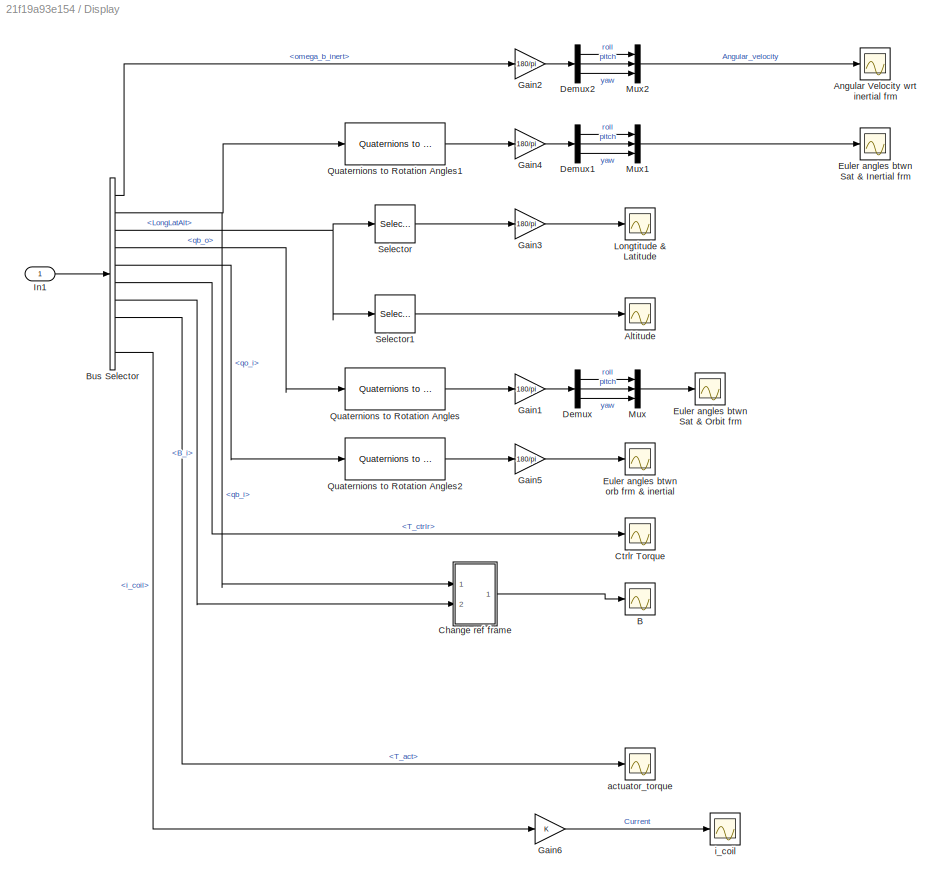
BLOCK [SubSystem] Display
  Ports = [1]
  RequestExecContextInheritance = off
BLOCK [Scope] Display/Altitude
  Floating = off
  LimitDataPoints = off
  NumInputPorts = 1
  Ports = [1]
  ShowLegends = off
BLOCK [Scope] Display/Angular Velocity wrt inertial frm
  Floating = off
  LegendLocations = 0.73621     0.76462     0.20167     0.11769
  LimitDataPoints = off
  NumInputPorts = 1
  Ports = [1]
  SaveName = ScopeData5
  ShowLegends = on
  TimeRange = 5445.680459835854
  YMax = 1.1
  YMin = -0.3
  ZoomMode = xonly
BLOCK [Scope] Display/B
  Floating = off
  LimitDataPoints = off
  NumInputPorts = 1
  Ports = [1]
  ShowLegends = off
BLOCK [BusSelector] Display/Bus Selector
  OutputSignals = Actual_Values.omega_b_inert,Actual_Values.qb_i,Actual_Values.LongLatAlt,Actual_Values.qb_o,Actual_Values.qo_i,Actual_Values.T_ctrlr,Actual_Values.B_i,T_act,q_ref,i_coil
  Ports = [1, 10]
BLOCK [SubSystem] Display/Change ref frame
  Ports = [2, 1]
  RequestExecContextInheritance = off
BLOCK [Inport] Display/Change ref frame/In1
  IconDisplay = Port number
BLOCK [Inport] Display/Change ref frame/In2
  IconDisplay = Port number
  Port = 2
BLOCK [Math] Display/Change ref frame/Math Function2
  Operator = transpose
  Ports = [1, 1]
BLOCK [Outport] Display/Change ref frame/Out1
  IconDisplay = Port number
BLOCK [Product] Display/Change ref frame/Product
  InputSameDT = off
  Multiplication = Matrix(*)
  OutDataTypeStr = Inherit: Inherit via internal rule
  Ports = [2, 1]
  RndMeth = Floor
  SaturateOnIntegerOverflow = off
BLOCK [SubSystem] Display/Change ref frame/q2RM1
  Ports = [1, 1]
  RequestExecContextInheritance = off
BLOCK [Sum] Display/Change ref frame/q2RM1/Add
  InputSameDT = off
  OutDataTypeStr = Inherit: Inherit via internal rule
  Ports = [2, 1]
  SaturateOnIntegerOverflow = off
BLOCK [Constant] Display/Change ref frame/q2RM1/Constant
  Value = eye(3)
BLOCK [Fcn] Display/Change ref frame/q2RM1/Fcn
  Commented = on
  Expr = SkewSym([u(1),u(2),u(3)])
BLOCK [Gain] Display/Change ref frame/q2RM1/Gain
  OutDataTypeStr = Inherit: Inherit via internal rule
  ParamDataTypeStr = Inherit: Inherit via internal rule
  SaturateOnIntegerOverflow = off
BLOCK [Inport] Display/Change ref frame/q2RM1/In1
  IconDisplay = Port number
BLOCK [MATLABFcn] Display/Change ref frame/q2RM1/Interpreted MATLAB Function
  MATLABFcn = SkewSym([u(1),u(2),u(3)],1)
  OutputDimensions = 9
  Ports = [1, 1]
BLOCK [Math] Display/Change ref frame/q2RM1/Math Function
  Operator = square
  Ports = [1, 1]
BLOCK [Outport] Display/Change ref frame/q2RM1/Out1
  IconDisplay = Port number
BLOCK [Product] Display/Change ref frame/q2RM1/Product
  InputSameDT = off
  OutDataTypeStr = Inherit: Inherit via internal rule
  Ports = [2, 1]
  RndMeth = Floor
  SaturateOnIntegerOverflow = off
BLOCK [Reshape] Display/Change ref frame/q2RM1/Reshape
  OutputDimensionality = Customize
  OutputDimensions = [3,3]
  Ports = [1, 1]
BLOCK [Selector] Display/Change ref frame/q2RM1/Selector
  Indices = [1]
  InputPortWidth = 4
  Ports = [1, 1]
BLOCK [Selector] Display/Change ref frame/q2RM1/Selector1
  Indices = [2 3 4]
  InputPortWidth = 4
  Ports = [1, 1]
BLOCK [Sum] Display/Change ref frame/q2RM1/Sum
  InputSameDT = off
  OutDataTypeStr = Inherit: Inherit via internal rule
  Ports = [2, 1]
  SaturateOnIntegerOverflow = off
BLOCK [Scope] Display/Ctrlr Torque
  Floating = off
  LimitDataPoints = off
  NumInputPorts = 1
  Ports = [1]
  ShowLegends = off
  YMax = 1.75e-10
  YMin = -5e-11
  ZoomMode = xonly
BLOCK [Demux] Display/Demux
  DisplayOption = bar
  Outputs = 3
  Ports = [1, 3]
BLOCK [Demux] Display/Demux1
  DisplayOption = bar
  Outputs = 3
  Ports = [1, 3]
BLOCK [Demux] Display/Demux2
  DisplayOption = bar
  Outputs = 3
  Ports = [1, 3]
BLOCK [Scope] Display/Euler angles btwn Sat & Inertial frm
  Floating = off
  LegendLocations = 0.86666     0.83166    0.084551     0.11208
  LimitDataPoints = off
  NumInputPorts = 1
  Ports = [1]
  SaveName = ScopeData8
  ShowLegends = on
  TimeRange = 5655.978629419876
  YMax = 200
  YMin = -200
  ZoomMode = yonly
BLOCK [Scope] Display/Euler angles btwn Sat & Orbit frm
  Floating = off
  LegendLocations = 0.85982     0.82851     0.10214    0.099743
  LimitDataPoints = off
  NumInputPorts = 1
  Ports = [1]
  ShowLegends = on
  TimeRange = 5445.680459835854
  YMax = 175
  YMin = -175
  ZoomMode = xonly
BLOCK [Scope] Display/Euler angles btwn orb frm & inertial
  Floating = off
  LimitDataPoints = off
  NumInputPorts = 1
  Ports = [1]
  ShowLegends = off
  YMax = 100
  YMin = -200
BLOCK [Gain] Display/Gain1
  Gain = 180/pi
  OutDataTypeStr = Inherit: Inherit via internal rule
  ParamDataTypeStr = Inherit: Inherit via internal rule
  SaturateOnIntegerOverflow = off
BLOCK [Gain] Display/Gain2
  Gain = 180/pi
  OutDataTypeStr = Inherit: Inherit via internal rule
  ParamDataTypeStr = Inherit: Inherit via internal rule
  SaturateOnIntegerOverflow = off
BLOCK [Gain] Display/Gain3
  Gain = 180/pi
  OutDataTypeStr = Inherit: Inherit via internal rule
  ParamDataTypeStr = Inherit: Inherit via internal rule
  SaturateOnIntegerOverflow = off
BLOCK [Gain] Display/Gain4
  Gain = 180/pi
  OutDataTypeStr = Inherit: Inherit via internal rule
  ParamDataTypeStr = Inherit: Inherit via internal rule
  SaturateOnIntegerOverflow = off
BLOCK [Gain] Display/Gain5
  Gain = 180/pi
  OutDataTypeStr = Inherit: Inherit via internal rule
  ParamDataTypeStr = Inherit: Inherit via internal rule
  SaturateOnIntegerOverflow = off
BLOCK [Gain] Display/Gain6
  OutDataTypeStr = Inherit: Inherit via internal rule
  ParamDataTypeStr = Inherit: Inherit via internal rule
  SaturateOnIntegerOverflow = off
BLOCK [Inport] Display/In1
  IconDisplay = Port number
BLOCK [Scope] Display/Longtitude & Latitude
  Floating = off
  LimitDataPoints = off
  NumInputPorts = 1
  Ports = [1]
  ShowLegends = off
BLOCK [Mux] Display/Mux
  DisplayOption = bar
  Inputs = 3
  Ports = [3, 1]
BLOCK [Mux] Display/Mux1
  DisplayOption = bar
  Inputs = 3
  Ports = [3, 1]
BLOCK [Mux] Display/Mux2
  DisplayOption = bar
  Inputs = 3
  Ports = [3, 1]
BLOCK [Reference] Display/Quaternions to Rotation Angles  REF=aerolibtransform2/Quaternions to Rotation Angles
  AttributesFormatString = Rotation Order: %<rotationOrder>
  Ports = [1, 1]
  SourceBlock = aerolibtransform2/Quaternions to Rotation Angles
  SourceType = Quat2Ang
  rotationOrder = XYZ
BLOCK [Reference] Display/Quaternions to Rotation Angles1  REF=aerolibtransform2/Quaternions to Rotation Angles
  AttributesFormatString = Rotation Order: %<rotationOrder>
  Ports = [1, 1]
  SourceBlock = aerolibtransform2/Quaternions to Rotation Angles
  SourceType = Quat2Ang
  rotationOrder = XYZ
BLOCK [Reference] Display/Quaternions to Rotation Angles2  REF=aerolibtransform2/Quaternions to Rotation Angles
  AttributesFormatString = Rotation Order: %<rotationOrder>
  Ports = [1, 1]
  SourceBlock = aerolibtransform2/Quaternions to Rotation Angles
  SourceType = Quat2Ang
  rotationOrder = XYZ
BLOCK [Selector] Display/Selector
  Indices = [1 2]
  InputPortWidth = 3
  Ports = [1, 1]
BLOCK [Selector] Display/Selector1
  Indices = [3]
  InputPortWidth = 3
  Ports = [1, 1]
BLOCK [Scope] Display/actuator_torque
  Floating = off
  LimitDataPoints = off
  NumInputPorts = 1
  Ports = [1]
  ShowLegends = off
  YMax = 2e-09
  YMin = -3.5e-09
  ZoomMode = xonly
BLOCK [Scope] Display/i_coil
  Floating = off
  LimitDataPoints = off
  NumInputPorts = 1
  Ports = [1]
  SaveName = ScopeData9
  ShowLegends = off
  TimeRange = 5445.680459835854
  YMax = 0.0005
  YMin = -0.001
  ZoomMode = xonly
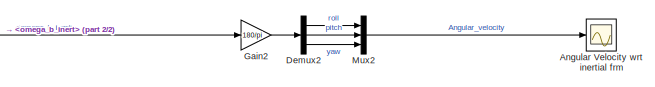
[diagram: Display1 - part 1/2, top center region]
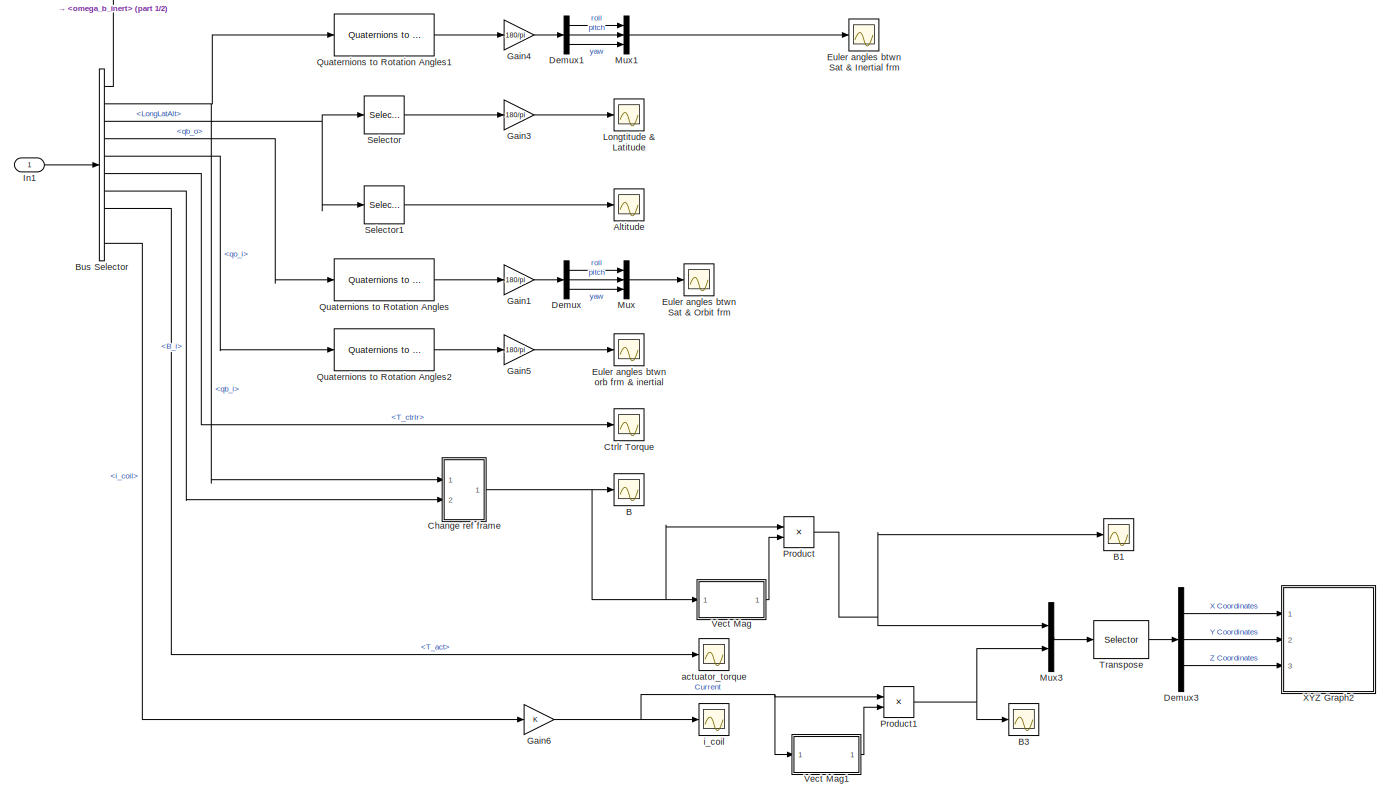
[diagram: Display1 - part 2/2, most of the canvas]
BLOCK [SubSystem] Display1
  Commented = on
  Ports = [1]
  RequestExecContextInheritance = off
BLOCK [Scope] Display1/Altitude
  Floating = off
  LimitDataPoints = off
  NumInputPorts = 1
  Ports = [1]
  ShowLegends = off
BLOCK [Scope] Display1/Angular Velocity wrt inertial frm
  Floating = off
  LegendLocations = 0.73621     0.76462     0.20167     0.11769
  LimitDataPoints = off
  NumInputPorts = 1
  Ports = [1]
  SaveName = ScopeData5
  ShowLegends = on
  TimeRange = 5445.680459835854
  YMax = 1.1
  YMin = -0.3
  ZoomMode = xonly
BLOCK [Scope] Display1/B
  Floating = off
  LimitDataPoints = off
  NumInputPorts = 1
  Ports = [1]
  ShowLegends = off
  YMax = 1.25e-05
  YMin = -2.25e-05
BLOCK [Scope] Display1/B1
  Floating = off
  LimitDataPoints = off
  NumInputPorts = 1
  Ports = [1]
  SaveName = ScopeData3
  ShowLegends = off
  YMax = 0.5
  YMin = -0.9
BLOCK [Scope] Display1/B3
  Floating = off
  LimitDataPoints = off
  NumInputPorts = 1
  Ports = [1]
  SaveName = ScopeData6
  ShowLegends = off
  YMax = 0.2
  YMin = -1
BLOCK [BusSelector] Display1/Bus Selector
  OutputSignals = Actual_Values.omega_b_inert,Actual_Values.qb_i,Actual_Values.LongLatAlt,Actual_Values.qb_o,Actual_Values.qo_i,Actual_Values.T_ctrlr,Actual_Values.B_i,T_act,q_ref,i_coil
  Ports = [1, 10]
BLOCK [SubSystem] Display1/Change ref frame
  Ports = [2, 1]
  RequestExecContextInheritance = off
BLOCK [Math] Display1/Change ref frame/Math Function2
  Operator = transpose
  Ports = [1, 1]
BLOCK [Outport] Display1/Change ref frame/Out1
  IconDisplay = Port number
BLOCK [Product] Display1/Change ref frame/Product
  InputSameDT = off
  Multiplication = Matrix(*)
  OutDataTypeStr = Inherit: Inherit via internal rule
  Ports = [2, 1]
  RndMeth = Floor
  SaturateOnIntegerOverflow = off
BLOCK [Inport] Display1/Change ref frame/q
  IconDisplay = Port number
BLOCK [SubSystem] Display1/Change ref frame/q2RM1
  Ports = [1, 1]
  RequestExecContextInheritance = off
BLOCK [Sum] Display1/Change ref frame/q2RM1/Add
  InputSameDT = off
  OutDataTypeStr = Inherit: Inherit via internal rule
  Ports = [2, 1]
  SaturateOnIntegerOverflow = off
BLOCK [Constant] Display1/Change ref frame/q2RM1/Constant
  Value = eye(3)
BLOCK [Gain] Display1/Change ref frame/q2RM1/Gain
  OutDataTypeStr = Inherit: Inherit via internal rule
  ParamDataTypeStr = Inherit: Inherit via internal rule
  SaturateOnIntegerOverflow = off
BLOCK [Inport] Display1/Change ref frame/q2RM1/In1
  IconDisplay = Port number
BLOCK [MATLABFcn] Display1/Change ref frame/q2RM1/Interpreted MATLAB Function
  MATLABFcn = SkewSym([u(1),u(2),u(3)],1)
  OutputDimensions = 9
  Ports = [1, 1]
BLOCK [Math] Display1/Change ref frame/q2RM1/Math Function
  Operator = square
  Ports = [1, 1]
BLOCK [Outport] Display1/Change ref frame/q2RM1/Out1
  IconDisplay = Port number
BLOCK [Product] Display1/Change ref frame/q2RM1/Product
  InputSameDT = off
  OutDataTypeStr = Inherit: Inherit via internal rule
  Ports = [2, 1]
  RndMeth = Floor
  SaturateOnIntegerOverflow = off
BLOCK [Reshape] Display1/Change ref frame/q2RM1/Reshape
  OutputDimensionality = Customize
  OutputDimensions = [3,3]
  Ports = [1, 1]
BLOCK [Selector] Display1/Change ref frame/q2RM1/Selector
  Indices = [1]
  InputPortWidth = 4
  Ports = [1, 1]
BLOCK [Selector] Display1/Change ref frame/q2RM1/Selector1
  Indices = [2 3 4]
  InputPortWidth = 4
  Ports = [1, 1]
BLOCK [Sum] Display1/Change ref frame/q2RM1/Sum
  InputSameDT = off
  OutDataTypeStr = Inherit: Inherit via internal rule
  Ports = [2, 1]
  SaturateOnIntegerOverflow = off
BLOCK [Inport] Display1/Change ref frame/v
  IconDisplay = Port number
  Port = 2
BLOCK [Scope] Display1/Ctrlr Torque
  Floating = off
  LimitDataPoints = off
  NumInputPorts = 1
  Ports = [1]
  ShowLegends = off
  YMax = 1.75e-10
  YMin = -5e-11
  ZoomMode = xonly
BLOCK [Demux] Display1/Demux
  DisplayOption = bar
  Outputs = 3
  Ports = [1, 3]
BLOCK [Demux] Display1/Demux1
  DisplayOption = bar
  Outputs = 3
  Ports = [1, 3]
BLOCK [Demux] Display1/Demux2
  DisplayOption = bar
  Outputs = 3
  Ports = [1, 3]
BLOCK [Demux] Display1/Demux3
  Commented = on
  Outputs = [2 2 2]
  Ports = [1, 3]
BLOCK [Scope] Display1/Euler angles btwn Sat & Inertial frm
  Floating = off
  LegendLocations = 0.77099     0.82502     0.16624    0.092097
  LimitDataPoints = off
  NumInputPorts = 1
  Ports = [1]
  SaveName = ScopeData8
  ShowLegends = on
  TimeRange = 5655.978629419876
  YMax = 4
  YMin = -3
  ZoomMode = xonly
BLOCK [Scope] Display1/Euler angles btwn Sat & Orbit frm
  Floating = off
  LimitDataPoints = off
  NumInputPorts = 1
  Ports = [1]
  ShowLegends = on
  TimeRange = 5445.680459835854
  YMax = 0.25
  ZoomMode = xonly
BLOCK [Scope] Display1/Euler angles btwn orb frm & inertial
  Floating = off
  LimitDataPoints = off
  NumInputPorts = 1
  Ports = [1]
  ShowLegends = off
  YMax = 100
  YMin = -200
BLOCK [Gain] Display1/Gain1
  Gain = 180/pi
  OutDataTypeStr = Inherit: Inherit via internal rule
  ParamDataTypeStr = Inherit: Inherit via internal rule
  SaturateOnIntegerOverflow = off
BLOCK [Gain] Display1/Gain2
  Gain = 180/pi
  OutDataTypeStr = Inherit: Inherit via internal rule
  ParamDataTypeStr = Inherit: Inherit via internal rule
  SaturateOnIntegerOverflow = off
BLOCK [Gain] Display1/Gain3
  Gain = 180/pi
  OutDataTypeStr = Inherit: Inherit via internal rule
  ParamDataTypeStr = Inherit: Inherit via internal rule
  SaturateOnIntegerOverflow = off
BLOCK [Gain] Display1/Gain4
  Gain = 180/pi
  OutDataTypeStr = Inherit: Inherit via internal rule
  ParamDataTypeStr = Inherit: Inherit via internal rule
  SaturateOnIntegerOverflow = off
BLOCK [Gain] Display1/Gain5
  Gain = 180/pi
  OutDataTypeStr = Inherit: Inherit via internal rule
  ParamDataTypeStr = Inherit: Inherit via internal rule
  SaturateOnIntegerOverflow = off
BLOCK [Gain] Display1/Gain6
  OutDataTypeStr = Inherit: Inherit via internal rule
  ParamDataTypeStr = Inherit: Inherit via internal rule
  SaturateOnIntegerOverflow = off
BLOCK [Inport] Display1/In1
  IconDisplay = Port number
BLOCK [Scope] Display1/Longtitude & Latitude
  Floating = off
  LimitDataPoints = off
  NumInputPorts = 1
  Ports = [1]
  ShowLegends = off
BLOCK [Mux] Display1/Mux
  DisplayOption = bar
  Inputs = 3
  Ports = [3, 1]
BLOCK [Mux] Display1/Mux1
  DisplayOption = bar
  Inputs = 3
  Ports = [3, 1]
BLOCK [Mux] Display1/Mux2
  DisplayOption = bar
  Inputs = 3
  Ports = [3, 1]
BLOCK [Mux] Display1/Mux3
  DisplayOption = bar
  Inputs = 2
  Ports = [2, 1]
BLOCK [Product] Display1/Product
  InputSameDT = off
  Inputs = */
  OutDataTypeStr = Inherit: Inherit via internal rule
  Ports = [2, 1]
  RndMeth = Floor
  SaturateOnIntegerOverflow = off
BLOCK [Product] Display1/Product1
  InputSameDT = off
  Inputs = */
  OutDataTypeStr = Inherit: Inherit via internal rule
  Ports = [2, 1]
  RndMeth = Floor
  SaturateOnIntegerOverflow = off
BLOCK [Reference] Display1/Quaternions to Rotation Angles  REF=aerolibtransform2/Quaternions to Rotation Angles
  AttributesFormatString = Rotation Order: %<rotationOrder>
  Ports = [1, 1]
  SourceBlock = aerolibtransform2/Quaternions to Rotation Angles
  SourceType = Quat2Ang
  rotationOrder = XYZ
BLOCK [Reference] Display1/Quaternions to Rotation Angles1  REF=aerolibtransform2/Quaternions to Rotation Angles
  AttributesFormatString = Rotation Order: %<rotationOrder>
  Ports = [1, 1]
  SourceBlock = aerolibtransform2/Quaternions to Rotation Angles
  SourceType = Quat2Ang
  rotationOrder = XYZ
BLOCK [Reference] Display1/Quaternions to Rotation Angles2  REF=aerolibtransform2/Quaternions to Rotation Angles
  AttributesFormatString = Rotation Order: %<rotationOrder>
  Ports = [1, 1]
  SourceBlock = aerolibtransform2/Quaternions to Rotation Angles
  SourceType = Quat2Ang
  rotationOrder = XYZ
BLOCK [Selector] Display1/Selector
  Indices = [1 2]
  InputPortWidth = 3
  Ports = [1, 1]
BLOCK [Selector] Display1/Selector1
  Indices = [3]
  InputPortWidth = 3
  Ports = [1, 1]
BLOCK [Selector] Display1/Transpose
  Indices = reshape(reshape(1:3*2,3,2)',3*2,1)
  InputPortWidth = 3*2
  Ports = [1, 1]
BLOCK [SubSystem] Display1/Vect Mag
  Ports = [1, 1]
  RequestExecContextInheritance = off
BLOCK [Inport] Display1/Vect Mag/In1
  IconDisplay = Port number
BLOCK [Math] Display1/Vect Mag/Math Function
  Operator = square
  Ports = [1, 1]
BLOCK [Outport] Display1/Vect Mag/Out1
  IconDisplay = Port number
BLOCK [Sqrt] Display1/Vect Mag/Sqrt
BLOCK [Sum] Display1/Vect Mag/Sum2
  IconShape = round
  InputSameDT = off
  Inputs = +
  OutDataTypeStr = Inherit: Inherit via internal rule
  Ports = [1, 1]
  SaturateOnIntegerOverflow = off
BLOCK [SubSystem] Display1/Vect Mag1
  Ports = [1, 1]
  RequestExecContextInheritance = off
BLOCK [Inport] Display1/Vect Mag1/In1
  IconDisplay = Port number
BLOCK [Math] Display1/Vect Mag1/Math Function
  Operator = square
  Ports = [1, 1]
BLOCK [Outport] Display1/Vect Mag1/Out1
  IconDisplay = Port number
BLOCK [Sqrt] Display1/Vect Mag1/Sqrt
BLOCK [Sum] Display1/Vect Mag1/Sum2
  IconShape = round
  InputSameDT = off
  Inputs = +
  OutDataTypeStr = Inherit: Inherit via internal rule
  Ports = [1, 1]
  SaturateOnIntegerOverflow = off
BLOCK [SubSystem] Display1/XYZ Graph2
  Commented = on
  CopyFcn = sfunxyz([],[],[],'CopyBlock')
  DeleteFcn = sfunxyz([],[],[],'DeleteBlock')
  LoadFcn = sfunxyz([],[],[],'LoadBlock')
  NameChangeFcn = sfunxyz([],[],[],'NameChange')
  Ports = [3]
  RequestExecContextInheritance = off
  StartFcn = sfunxyz([],[],[],'Start')
  StopFcn = sfunxyz([],[],[],'Stop')
BLOCK [Mux] Display1/XYZ Graph2/Mux
  Inputs = [np np np]
  Ports = [3, 1]
BLOCK [S-Function] Display1/XYZ Graph2/sfunxy
  EnableBusSupport = off
  FunctionName = sfunxyz
  Parameters = [xlim ylim zlim],st,np,cp,gd
  Ports = [1]
BLOCK [Inport] Display1/XYZ Graph2/x
  IconDisplay = Port number
BLOCK [Inport] Display1/XYZ Graph2/y
  IconDisplay = Port number
  Port = 2
BLOCK [Inport] Display1/XYZ Graph2/z
  IconDisplay = Port number
  Port = 3
BLOCK [Scope] Display1/actuator_torque
  Floating = off
  LimitDataPoints = off
  NumInputPorts = 1
  Ports = [1]
  ShowLegends = off
  YMax = 2e-09
  YMin = -3.5e-09
  ZoomMode = xonly
BLOCK [Scope] Display1/i_coil
  Floating = off
  LimitDataPoints = off
  NumInputPorts = 1
  Ports = [1]
  SaveName = ScopeData9
  ShowLegends = off
  TimeRange = 5445.680459835854
  YMax = 7.5e-07
  YMin = -4.75e-06
  ZoomMode = xonly
BLOCK [SubSystem] Disturbances
  Ports = [1, 1]
  RequestExecContextInheritance = off
BLOCK [BusSelector] Disturbances/Bus Selector
  OutputSignals = qb_o,omega_orbit,omega_b_inert
  Ports = [1, 3]
BLOCK [Constant] Disturbances/Constant
  Value = 7.2157
BLOCK [Inport] Disturbances/In1
  IconDisplay = Port number
BLOCK [M-S-Function] Disturbances/Level-2 MATLAB S-Function
  FunctionName = gravityGradientSfun
  Ports = [2, 1]
BLOCK [M-S-Function] Disturbances/Level-2 MATLAB S-Function1
  FunctionName = aeroDragSfun
  Parameters = I,mass,aerodrag_c_p,aerodrag_A_d
  Ports = [4, 1]
BLOCK [Outport] Disturbances/Out1
  IconDisplay = Port number
BLOCK [Sum] Disturbances/Sum
  IconShape = round
  InputSameDT = off
  Inputs = |++
  OutDataTypeStr = Inherit: Inherit via internal rule
  Ports = [2, 1]
  SaturateOnIntegerOverflow = off
BLOCK [SubSystem] Environment
  Ports = [1, 1]
  RequestExecContextInheritance = off
BLOCK [BusAssignment] Environment/Bus Assignment
  AssignedSignals = B_i
  Ports = [2, 1]
BLOCK [BusSelector] Environment/Bus Selector
  OutputSignals = LongLatAlt
  Ports = [1, 1]
BLOCK [Constant] Environment/Constant
  Value = 0
BLOCK [Inport] Environment/In1
  IconDisplay = Port number
BLOCK [M-S-Function] Environment/Level-2 MATLAB S-Function
  FunctionName = IGRFSfun
  Parameters = igrf_L,igrf_tol,igrf_G,igrf_H
  Ports = [2, 1]
BLOCK [Outport] Environment/Out1
  IconDisplay = Port number
BLOCK [Gain] Gain
  OutDataTypeStr = Inherit: Inherit via internal rule
  ParamDataTypeStr = Inherit: Inherit via internal rule
  SaturateOnIntegerOverflow = off
BLOCK [SubSystem] Mode Selection
  Ports = [1, 1]
  RequestExecContextInheritance = off
BLOCK [BusAssignment] Mode Selection/Bus Assignment
  AssignedSignals = Mode
  Ports = [2, 1]
BLOCK [Constant] Mode Selection/Constant
BLOCK [Inport] Mode Selection/In1
  IconDisplay = Port number
BLOCK [Outport] Mode Selection/Out1
  IconDisplay = Port number
BLOCK [SubSystem] Reference
  Ports = [1, 1]
  RequestExecContextInheritance = off
BLOCK [BusAssignment] Reference/Bus Assignment
  AssignedSignals = q_ref
  Ports = [2, 1]
BLOCK [Constant] Reference/Constant
  Value = q_ref
BLOCK [Inport] Reference/In1
  IconDisplay = Port number
BLOCK [Outport] Reference/Out1
  IconDisplay = Port number
BLOCK [SubSystem] Sensors
  Ports = [1, 1]
  RequestExecContextInheritance = off
BLOCK [BusCreator] Sensors/Bus Creator1
  DisplayOption = bar
  Inputs = 10
  Ports = [10, 1]
BLOCK [BusSelector] Sensors/Bus Selector
  OutputAsBus = on
  OutputSignals = B_i,LongLatAlt,qb_i,omega_b_inert
  Ports = [1, 1]
BLOCK [Constant] Sensors/Constant
BLOCK [Constant] Sensors/Constant1
  Value = [1,0,0,0]
BLOCK [Constant] Sensors/Constant2
  Value = [0;0;0]
BLOCK [Constant] Sensors/Constant3
  Value = [0;0;0]
BLOCK [Constant] Sensors/Constant4
  Value = [0;0;0]
BLOCK [Constant] Sensors/Constant5
  Value = [0;0;0]
BLOCK [Constant] Sensors/Constant6
  Value = [0;0;0]
BLOCK [Constant] Sensors/Constant7
  Value = [0;0;0]
BLOCK [Inport] Sensors/In1
  IconDisplay = Port number
BLOCK [Outport] Sensors/Out1
  IconDisplay = Port number
BLOCK [SubSystem] Subsystem
  Ports = [2, 1]
  RequestExecContextInheritance = off
BLOCK [Inport] Subsystem/Act
  IconDisplay = Port number
  Port = 2
BLOCK [Outport] Subsystem/Bus
  IconDisplay = Port number
BLOCK [BusAssignment] Subsystem/Bus Assignment
  AssignedSignals = T_total
  Ports = [2, 1]
BLOCK [BusSelector] Subsystem/Bus Selector1
  OutputSignals = T_act
  Ports = [1, 1]
BLOCK [Inport] Subsystem/Disturb
  IconDisplay = Port number
BLOCK [Sum] Subsystem/Sum
  IconShape = round
  InputSameDT = off
  Inputs = ++|
  OutDataTypeStr = Inherit: Inherit via internal rule
  Ports = [2, 1]
  SaturateOnIntegerOverflow = off
BLOCK [SubSystem] Variant Subsystem
  Ports = [1, 1]
  RequestExecContextInheritance = off
  Variant = on
BLOCK [SubSystem] Variant Subsystem/2 coil dipole
  Ports = [1, 1]
  RequestExecContextInheritance = off
  VariantControl = ActType==5
BLOCK [SubSystem] Variant Subsystem/2 coil dipole/B vect from inert frm to body frm
  Ports = [2, 1]
  RequestExecContextInheritance = off
BLOCK [Outport] Variant Subsystem/2 coil dipole/B vect from inert frm to body frm/B_b
  IconDisplay = Port number
BLOCK [Inport] Variant Subsystem/2 coil dipole/B vect from inert frm to body frm/B_i
  IconDisplay = Port number
BLOCK [Math] Variant Subsystem/2 coil dipole/B vect from inert frm to body frm/Math Function2
  Operator = transpose
  Ports = [1, 1]
BLOCK [Product] Variant Subsystem/2 coil dipole/B vect from inert frm to body frm/Product
  InputSameDT = off
  Multiplication = Matrix(*)
  OutDataTypeStr = Inherit: Inherit via internal rule
  Ports = [2, 1]
  RndMeth = Floor
  SaturateOnIntegerOverflow = off
BLOCK [Inport] Variant Subsystem/2 coil dipole/B vect from inert frm to body frm/q
  IconDisplay = Port number
  Port = 2
BLOCK [SubSystem] Variant Subsystem/2 coil dipole/B vect from inert frm to body frm/q2RM
  Ports = [1, 1]
  RequestExecContextInheritance = off
BLOCK [Sum] Variant Subsystem/2 coil dipole/B vect from inert frm to body frm/q2RM/Add
  InputSameDT = off
  OutDataTypeStr = Inherit: Inherit via internal rule
  Ports = [2, 1]
  SaturateOnIntegerOverflow = off
BLOCK [Constant] Variant Subsystem/2 coil dipole/B vect from inert frm to body frm/q2RM/Constant
  Value = eye(3)
BLOCK [Fcn] Variant Subsystem/2 coil dipole/B vect from inert frm to body frm/q2RM/Fcn
  Commented = on
  Expr = SkewSym([u(1),u(2),u(3)])
BLOCK [Gain] Variant Subsystem/2 coil dipole/B vect from inert frm to body frm/q2RM/Gain
  Gain = 2
  OutDataTypeStr = Inherit: Inherit via internal rule
  ParamDataTypeStr = Inherit: Inherit via internal rule
  SaturateOnIntegerOverflow = off
BLOCK [Inport] Variant Subsystem/2 coil dipole/B vect from inert frm to body frm/q2RM/In1
  IconDisplay = Port number
BLOCK [MATLABFcn] Variant Subsystem/2 coil dipole/B vect from inert frm to body frm/q2RM/Interpreted MATLAB Function
  MATLABFcn = SkewSym([u(1),u(2),u(3)],1)
  OutputDimensions = 9
  Ports = [1, 1]
BLOCK [Math] Variant Subsystem/2 coil dipole/B vect from inert frm to body frm/q2RM/Math Function
  Operator = square
  Ports = [1, 1]
BLOCK [Outport] Variant Subsystem/2 coil dipole/B vect from inert frm to body frm/q2RM/Out1
  IconDisplay = Port number
BLOCK [Product] Variant Subsystem/2 coil dipole/B vect from inert frm to body frm/q2RM/Product
  InputSameDT = off
  OutDataTypeStr = Inherit: Inherit via internal rule
  Ports = [2, 1]
  RndMeth = Floor
  SaturateOnIntegerOverflow = off
BLOCK [Reshape] Variant Subsystem/2 coil dipole/B vect from inert frm to body frm/q2RM/Reshape
  OutputDimensionality = Customize
  OutputDimensions = [3,3]
  Ports = [1, 1]
BLOCK [Selector] Variant Subsystem/2 coil dipole/B vect from inert frm to body frm/q2RM/Selector
  Indices = [1]
  InputPortWidth = 4
  Ports = [1, 1]
BLOCK [Selector] Variant Subsystem/2 coil dipole/B vect from inert frm to body frm/q2RM/Selector1
  Indices = [2 3 4]
  InputPortWidth = 4
  Ports = [1, 1]
BLOCK [Sum] Variant Subsystem/2 coil dipole/B vect from inert frm to body frm/q2RM/Sum
  InputSameDT = off
  OutDataTypeStr = Inherit: Inherit via internal rule
  Ports = [2, 1]
  SaturateOnIntegerOverflow = off
BLOCK [BusAssignment] Variant Subsystem/2 coil dipole/Bus Assignment
  AssignedSignals = m_coil,T_act,i_coil
  Ports = [4, 1]
BLOCK [BusSelector] Variant Subsystem/2 coil dipole/Bus Selector
  OutputSignals = m_b,Sensor_Values.B_i,Sensor_Values.qb_i
  Ports = [1, 3]
BLOCK [Constant] Variant Subsystem/2 coil dipole/Constant
  Value = nA
BLOCK [Constant] Variant Subsystem/2 coil dipole/Constant3
  Value = 0
BLOCK [Reference] Variant Subsystem/2 coil dipole/Cross Product  REF=vrlib/Utilities/Cross Product
  Ports = [2, 1]
  SourceBlock = vrlib/Utilities/Cross Product
  SourceType = Cross Product
BLOCK [Product] Variant Subsystem/2 coil dipole/Divide
  InputSameDT = off
  Inputs = */
  OutDataTypeStr = Inherit: Inherit via internal rule
  Ports = [2, 1]
  RndMeth = Floor
  SaturateOnIntegerOverflow = off
BLOCK [Inport] Variant Subsystem/2 coil dipole/In1
  IconDisplay = Port number
BLOCK [Mux] Variant Subsystem/2 coil dipole/Mux1
  DisplayOption = bar
  Inputs = 2
  Ports = [2, 1]
BLOCK [Outport] Variant Subsystem/2 coil dipole/Out1
  IconDisplay = Port number
BLOCK [Saturate] Variant Subsystem/2 coil dipole/Saturation
  InputPortMap = u0
  LowerLimit = -0.24
  Ports = [1, 1]
  UpperLimit = 0.24
BLOCK [Selector] Variant Subsystem/2 coil dipole/Selector
  Indices = [1 2]
  InputPortWidth = 3
  Ports = [1, 1]
BLOCK [SubSystem] Variant Subsystem/3 coil dipole
  Ports = [1, 1]
  RequestExecContextInheritance = off
  VariantControl = ActType==4
BLOCK [SubSystem] Variant Subsystem/3 coil dipole/B vect from inert frm to body frm
  Ports = [2, 1]
  RequestExecContextInheritance = off
BLOCK [Outport] Variant Subsystem/3 coil dipole/B vect from inert frm to body frm/B_b
  IconDisplay = Port number
BLOCK [Inport] Variant Subsystem/3 coil dipole/B vect from inert frm to body frm/B_i
  IconDisplay = Port number
BLOCK [Math] Variant Subsystem/3 coil dipole/B vect from inert frm to body frm/Math Function2
  Operator = transpose
  Ports = [1, 1]
BLOCK [Product] Variant Subsystem/3 coil dipole/B vect from inert frm to body frm/Product
  InputSameDT = off
  Multiplication = Matrix(*)
  OutDataTypeStr = Inherit: Inherit via internal rule
  Ports = [2, 1]
  RndMeth = Floor
  SaturateOnIntegerOverflow = off
BLOCK [Inport] Variant Subsystem/3 coil dipole/B vect from inert frm to body frm/q
  IconDisplay = Port number
  Port = 2
BLOCK [SubSystem] Variant Subsystem/3 coil dipole/B vect from inert frm to body frm/q2RM
  Ports = [1, 1]
  RequestExecContextInheritance = off
BLOCK [Sum] Variant Subsystem/3 coil dipole/B vect from inert frm to body frm/q2RM/Add
  InputSameDT = off
  OutDataTypeStr = Inherit: Inherit via internal rule
  Ports = [2, 1]
  SaturateOnIntegerOverflow = off
BLOCK [Constant] Variant Subsystem/3 coil dipole/B vect from inert frm to body frm/q2RM/Constant
  Value = eye(3)
BLOCK [Fcn] Variant Subsystem/3 coil dipole/B vect from inert frm to body frm/q2RM/Fcn
  Commented = on
  Expr = SkewSym([u(1),u(2),u(3)])
BLOCK [Gain] Variant Subsystem/3 coil dipole/B vect from inert frm to body frm/q2RM/Gain
  Gain = 2
  OutDataTypeStr = Inherit: Inherit via internal rule
  ParamDataTypeStr = Inherit: Inherit via internal rule
  SaturateOnIntegerOverflow = off
BLOCK [Inport] Variant Subsystem/3 coil dipole/B vect from inert frm to body frm/q2RM/In1
  IconDisplay = Port number
BLOCK [MATLABFcn] Variant Subsystem/3 coil dipole/B vect from inert frm to body frm/q2RM/Interpreted MATLAB Function
  MATLABFcn = SkewSym([u(1),u(2),u(3)],1)
  OutputDimensions = 9
  Ports = [1, 1]
BLOCK [Math] Variant Subsystem/3 coil dipole/B vect from inert frm to body frm/q2RM/Math Function
  Operator = square
  Ports = [1, 1]
BLOCK [Outport] Variant Subsystem/3 coil dipole/B vect from inert frm to body frm/q2RM/Out1
  IconDisplay = Port number
BLOCK [Product] Variant Subsystem/3 coil dipole/B vect from inert frm to body frm/q2RM/Product
  InputSameDT = off
  OutDataTypeStr = Inherit: Inherit via internal rule
  Ports = [2, 1]
  RndMeth = Floor
  SaturateOnIntegerOverflow = off
BLOCK [Reshape] Variant Subsystem/3 coil dipole/B vect from inert frm to body frm/q2RM/Reshape
  OutputDimensionality = Customize
  OutputDimensions = [3,3]
  Ports = [1, 1]
BLOCK [Selector] Variant Subsystem/3 coil dipole/B vect from inert frm to body frm/q2RM/Selector
  Indices = [1]
  InputPortWidth = 4
  Ports = [1, 1]
BLOCK [Selector] Variant Subsystem/3 coil dipole/B vect from inert frm to body frm/q2RM/Selector1
  Indices = [2 3 4]
  InputPortWidth = 4
  Ports = [1, 1]
BLOCK [Sum] Variant Subsystem/3 coil dipole/B vect from inert frm to body frm/q2RM/Sum
  InputSameDT = off
  OutDataTypeStr = Inherit: Inherit via internal rule
  Ports = [2, 1]
  SaturateOnIntegerOverflow = off
BLOCK [BusAssignment] Variant Subsystem/3 coil dipole/Bus Assignment
  AssignedSignals = m_coil,T_act,i_coil
  Ports = [4, 1]
BLOCK [BusSelector] Variant Subsystem/3 coil dipole/Bus Selector
  OutputSignals = m_b,Sensor_Values.B_i,Sensor_Values.qb_i
  Ports = [1, 3]
BLOCK [Constant] Variant Subsystem/3 coil dipole/Constant
  Value = nA
BLOCK [Reference] Variant Subsystem/3 coil dipole/Cross Product  REF=vrlib/Utilities/Cross Product
  Ports = [2, 1]
  SourceBlock = vrlib/Utilities/Cross Product
  SourceType = Cross Product
BLOCK [Product] Variant Subsystem/3 coil dipole/Divide
  InputSameDT = off
  Inputs = */
  OutDataTypeStr = Inherit: Inherit via internal rule
  Ports = [2, 1]
  RndMeth = Floor
  SaturateOnIntegerOverflow = off
BLOCK [Inport] Variant Subsystem/3 coil dipole/In1
  IconDisplay = Port number
BLOCK [Outport] Variant Subsystem/3 coil dipole/Out1
  IconDisplay = Port number
BLOCK [Saturate] Variant Subsystem/3 coil dipole/Saturation
  InputPortMap = u0
  LowerLimit = -0.24
  Ports = [1, 1]
  UpperLimit = 0.24
BLOCK [SubSystem] Variant Subsystem/Ideal Torque
  Ports = [1, 1]
  RequestExecContextInheritance = off
  VariantControl = ActType==1
BLOCK [BusCreator] Variant Subsystem/Ideal Torque/Bus Creator
  DisplayOption = bar
  Inputs = 3
  Ports = [3, 1]
BLOCK [BusSelector] Variant Subsystem/Ideal Torque/Bus Selector
  OutputSignals = Actual_Values.T_ctrlr
  Ports = [1, 1]
BLOCK [Constant] Variant Subsystem/Ideal Torque/Constant
  Value = [0,0,0]
BLOCK [Gain] Variant Subsystem/Ideal Torque/Gain
  OutDataTypeStr = Inherit: Inherit via internal rule
  ParamDataTypeStr = Inherit: Inherit via internal rule
  SaturateOnIntegerOverflow = off
BLOCK [Inport] Variant Subsystem/Ideal Torque/In1
  IconDisplay = Port number
BLOCK [Outport] Variant Subsystem/Ideal Torque/Out1
  IconDisplay = Port number
BLOCK [Inport] Variant Subsystem/In1
  IconDisplay = Port number
BLOCK [SubSystem] Variant Subsystem/No Torque
  Ports = [1, 1]
  RequestExecContextInheritance = off
  VariantControl = ActType==0
BLOCK [BusAssignment] Variant Subsystem/No Torque/Bus Assignment
  AssignedSignals = T_act,m_coil,i_coil
  Ports = [4, 1]
BLOCK [Constant] Variant Subsystem/No Torque/Constant
  Value = [0;0;0]
BLOCK [Inport] Variant Subsystem/No Torque/In1
  IconDisplay = Port number
BLOCK [Outport] Variant Subsystem/No Torque/Out1
  IconDisplay = Port number
BLOCK [Outport] Variant Subsystem/Out1
  IconDisplay = Port number
BLOCK [SubSystem] Variant Subsystem/Three Axis MagTorq
  Ports = [1, 1]
  RequestExecContextInheritance = off
  VariantControl = ActType==2
BLOCK [SubSystem] Variant Subsystem/Three Axis MagTorq/B vect from inert frm to body frm
  Ports = [2, 1]
  RequestExecContextInheritance = off
BLOCK [Outport] Variant Subsystem/Three Axis MagTorq/B vect from inert frm to body frm/B_b
  IconDisplay = Port number
BLOCK [Inport] Variant Subsystem/Three Axis MagTorq/B vect from inert frm to body frm/B_i
  IconDisplay = Port number
  Port = 2
BLOCK [Math] Variant Subsystem/Three Axis MagTorq/B vect from inert frm to body frm/Math Function1
  Operator = transpose
  Ports = [1, 1]
BLOCK [Product] Variant Subsystem/Three Axis MagTorq/B vect from inert frm to body frm/Product
  InputSameDT = off
  Multiplication = Matrix(*)
  OutDataTypeStr = Inherit: Inherit via internal rule
  Ports = [2, 1]
  RndMeth = Floor
  SaturateOnIntegerOverflow = off
BLOCK [Inport] Variant Subsystem/Three Axis MagTorq/B vect from inert frm to body frm/q
  IconDisplay = Port number
BLOCK [SubSystem] Variant Subsystem/Three Axis MagTorq/B vect from inert frm to body frm/q2RM2
  Ports = [1, 1]
  RequestExecContextInheritance = off
BLOCK [Sum] Variant Subsystem/Three Axis MagTorq/B vect from inert frm to body frm/q2RM2/Add
  InputSameDT = off
  OutDataTypeStr = Inherit: Inherit via internal rule
  Ports = [2, 1]
  SaturateOnIntegerOverflow = off
BLOCK [Constant] Variant Subsystem/Three Axis MagTorq/B vect from inert frm to body frm/q2RM2/Constant
  Value = eye(3)
BLOCK [Fcn] Variant Subsystem/Three Axis MagTorq/B vect from inert frm to body frm/q2RM2/Fcn
  Commented = on
  Expr = SkewSym([u(1),u(2),u(3)])
BLOCK [Gain] Variant Subsystem/Three Axis MagTorq/B vect from inert frm to body frm/q2RM2/Gain
  Gain = 2
  OutDataTypeStr = Inherit: Inherit via internal rule
  ParamDataTypeStr = Inherit: Inherit via internal rule
  SaturateOnIntegerOverflow = off
BLOCK [Inport] Variant Subsystem/Three Axis MagTorq/B vect from inert frm to body frm/q2RM2/In1
  IconDisplay = Port number
BLOCK [MATLABFcn] Variant Subsystem/Three Axis MagTorq/B vect from inert frm to body frm/q2RM2/Interpreted MATLAB Function
  MATLABFcn = SkewSym([u(1),u(2),u(3)],1)
  OutputDimensions = 9
  Ports = [1, 1]
BLOCK [Math] Variant Subsystem/Three Axis MagTorq/B vect from inert frm to body frm/q2RM2/Math Function
  Operator = square
  Ports = [1, 1]
BLOCK [Outport] Variant Subsystem/Three Axis MagTorq/B vect from inert frm to body frm/q2RM2/Out1
  IconDisplay = Port number
BLOCK [Product] Variant Subsystem/Three Axis MagTorq/B vect from inert frm to body frm/q2RM2/Product
  InputSameDT = off
  OutDataTypeStr = Inherit: Inherit via internal rule
  Ports = [2, 1]
  RndMeth = Floor
  SaturateOnIntegerOverflow = off
BLOCK [Reshape] Variant Subsystem/Three Axis MagTorq/B vect from inert frm to body frm/q2RM2/Reshape
  OutputDimensionality = Customize
  OutputDimensions = [3,3]
  Ports = [1, 1]
BLOCK [Scope] Variant Subsystem/Three Axis MagTorq/B vect from inert frm to body frm/q2RM2/Scope
  Floating = off
  NumInputPorts = 1
  Ports = [1]
  SaveName = ScopeData2
  ShowLegends = off
BLOCK [Selector] Variant Subsystem/Three Axis MagTorq/B vect from inert frm to body frm/q2RM2/Selector
  Indices = [1]
  InputPortWidth = 4
  Ports = [1, 1]
BLOCK [Selector] Variant Subsystem/Three Axis MagTorq/B vect from inert frm to body frm/q2RM2/Selector1
  Indices = [2 3 4]
  InputPortWidth = 4
  Ports = [1, 1]
BLOCK [Sum] Variant Subsystem/Three Axis MagTorq/B vect from inert frm to body frm/q2RM2/Sum
  InputSameDT = off
  OutDataTypeStr = Inherit: Inherit via internal rule
  Ports = [2, 1]
  SaturateOnIntegerOverflow = off
BLOCK [SubSystem] Variant Subsystem/Three Axis MagTorq/B vect from inert frm to body frm1
  Ports = [2, 1]
  RequestExecContextInheritance = off
BLOCK [Outport] Variant Subsystem/Three Axis MagTorq/B vect from inert frm to body frm1/B_b
  IconDisplay = Port number
BLOCK [Inport] Variant Subsystem/Three Axis MagTorq/B vect from inert frm to body frm1/B_i
  IconDisplay = Port number
  Port = 2
BLOCK [Math] Variant Subsystem/Three Axis MagTorq/B vect from inert frm to body frm1/Math Function1
  Operator = transpose
  Ports = [1, 1]
BLOCK [Product] Variant Subsystem/Three Axis MagTorq/B vect from inert frm to body frm1/Product1
  InputSameDT = off
  Multiplication = Matrix(*)
  OutDataTypeStr = Inherit: Inherit via internal rule
  Ports = [2, 1]
  RndMeth = Floor
  SaturateOnIntegerOverflow = off
BLOCK [Inport] Variant Subsystem/Three Axis MagTorq/B vect from inert frm to body frm1/q
  IconDisplay = Port number
BLOCK [SubSystem] Variant Subsystem/Three Axis MagTorq/B vect from inert frm to body frm1/q2RM2
  Ports = [1, 1]
  RequestExecContextInheritance = off
BLOCK [Sum] Variant Subsystem/Three Axis MagTorq/B vect from inert frm to body frm1/q2RM2/Add
  InputSameDT = off
  OutDataTypeStr = Inherit: Inherit via internal rule
  Ports = [2, 1]
  SaturateOnIntegerOverflow = off
BLOCK [Constant] Variant Subsystem/Three Axis MagTorq/B vect from inert frm to body frm1/q2RM2/Constant
  Value = eye(3)
BLOCK [Fcn] Variant Subsystem/Three Axis MagTorq/B vect from inert frm to body frm1/q2RM2/Fcn
  Commented = on
  Expr = SkewSym([u(1),u(2),u(3)])
BLOCK [Gain] Variant Subsystem/Three Axis MagTorq/B vect from inert frm to body frm1/q2RM2/Gain
  OutDataTypeStr = Inherit: Inherit via internal rule
  ParamDataTypeStr = Inherit: Inherit via internal rule
  SaturateOnIntegerOverflow = off
BLOCK [Inport] Variant Subsystem/Three Axis MagTorq/B vect from inert frm to body frm1/q2RM2/In1
  IconDisplay = Port number
BLOCK [MATLABFcn] Variant Subsystem/Three Axis MagTorq/B vect from inert frm to body frm1/q2RM2/Interpreted MATLAB Function
  MATLABFcn = SkewSym([u(1),u(2),u(3)],1)
  OutputDimensions = 9
  Ports = [1, 1]
BLOCK [Math] Variant Subsystem/Three Axis MagTorq/B vect from inert frm to body frm1/q2RM2/Math Function
  Operator = square
  Ports = [1, 1]
BLOCK [Outport] Variant Subsystem/Three Axis MagTorq/B vect from inert frm to body frm1/q2RM2/Out1
  IconDisplay = Port number
BLOCK [Product] Variant Subsystem/Three Axis MagTorq/B vect from inert frm to body frm1/q2RM2/Product
  InputSameDT = off
  OutDataTypeStr = Inherit: Inherit via internal rule
  Ports = [2, 1]
  RndMeth = Floor
  SaturateOnIntegerOverflow = off
BLOCK [Reshape] Variant Subsystem/Three Axis MagTorq/B vect from inert frm to body frm1/q2RM2/Reshape
  OutputDimensionality = Customize
  OutputDimensions = [3,3]
  Ports = [1, 1]
BLOCK [Selector] Variant Subsystem/Three Axis MagTorq/B vect from inert frm to body frm1/q2RM2/Selector
  Indices = [1]
  InputPortWidth = 4
  Ports = [1, 1]
BLOCK [Selector] Variant Subsystem/Three Axis MagTorq/B vect from inert frm to body frm1/q2RM2/Selector1
  Indices = [2 3 4]
  InputPortWidth = 4
  Ports = [1, 1]
BLOCK [Sum] Variant Subsystem/Three Axis MagTorq/B vect from inert frm to body frm1/q2RM2/Sum
  InputSameDT = off
  OutDataTypeStr = Inherit: Inherit via internal rule
  Ports = [2, 1]
  SaturateOnIntegerOverflow = off
BLOCK [BusAssignment] Variant Subsystem/Three Axis MagTorq/Bus Assignment
  AssignedSignals = T_act,m_coil,i_coil
  Ports = [4, 1]
BLOCK [BusSelector] Variant Subsystem/Three Axis MagTorq/Bus Selector
  OutputSignals = T_ctrlr,Actual_Values.B_i,Sensor_Values.B_i,Sensor_Values.qb_i
  Ports = [1, 4]
BLOCK [Inport] Variant Subsystem/Three Axis MagTorq/In1
  IconDisplay = Port number
BLOCK [M-S-Function] Variant Subsystem/Three Axis MagTorq/Level-2 MATLAB S-Function
  FunctionName = Magtorq2Sfun
  Parameters = nAx, nAy, nAz
  Ports = [4, 3]
BLOCK [Outport] Variant Subsystem/Three Axis MagTorq/Out1
  IconDisplay = Port number
BLOCK [SubSystem] Variant Subsystem/Two Axis MagTorq
  Ports = [1, 1]
  RequestExecContextInheritance = off
  VariantControl = ActType==3
BLOCK [BusCreator] Variant Subsystem/Two Axis MagTorq/Bus Creator
  DisplayOption = bar
  Ports = [4, 1]
BLOCK [BusSelector] Variant Subsystem/Two Axis MagTorq/Bus Selector
  OutputSignals = T_ctrlr,ref_out.Mode_select_out.Sensor_out.Enviro_out.B_real,ref_out.Mode_select_out.Sensor_out.Sensor_values.B_real
  Ports = [1, 3]
BLOCK [Inport] Variant Subsystem/Two Axis MagTorq/In1
  IconDisplay = Port number
BLOCK [M-S-Function] Variant Subsystem/Two Axis MagTorq/Level-2 MATLAB S-Function
  FunctionName = MagtorqSfun
  Ports = [3, 2]
BLOCK [Outport] Variant Subsystem/Two Axis MagTorq/Out1
  IconDisplay = Port number
BLOCK [Selector] Variant Subsystem/Two Axis MagTorq/Selector
  Indices = [1 2]
  InputPortWidth = 3
  Ports = [1, 1]
ANNOTATION (root): EIRSAT ADCS Model
ANNOTATION Control: 1) Only subsystems can be added as variant choices at this level 2) Blocks cannot be connected at this level as connectivity is automatically determined at simulation, based on the active variant
ANNOTATION Variant Subsystem: 1) Only subsystems can be added as variant choices at this level 2) Blocks cannot be connected at this level as connectivity is automatically determined at simulation, based on the active variant
LINE Control/B dot/Bus Creator:1 -> Control/B dot/bus out:1
LINE Control/B dot/Bus Selector:4 -> Control/B dot/Derivative:1
LINE Control/B dot/Derivative:1 -> Control/B dot/Gain:1
LINE Control/B dot/Gain:1 -> Control/B dot/Bus Creator:2
NET Control/B dot/bus in:1 -> Control/B dot/Bus Creator:1, Control/B dot/Bus Selector:1
LINE Control/PD Zenith/B vect from inert frm to body frm/In1:1 -> Control/PD Zenith/B vect from inert frm to body frm/q2RM2:1
LINE Control/PD Zenith/B vect from inert frm to body frm/In2:1 -> Control/PD Zenith/B vect from inert frm to body frm/Product1:2
LINE Control/PD Zenith/B vect from inert frm to body frm/Math Function1:1 -> Control/PD Zenith/B vect from inert frm to body frm/Product1:1
LINE Control/PD Zenith/B vect from inert frm to body frm/Product1:1 -> Control/PD Zenith/B vect from inert frm to body frm/Out1:1
LINE Control/PD Zenith/B vect from inert frm to body frm/q2RM2/Add:1 -> Control/PD Zenith/B vect from inert frm to body frm/q2RM2/Out1:1
LINE Control/PD Zenith/B vect from inert frm to body frm/q2RM2/Constant:1 -> Control/PD Zenith/B vect from inert frm to body frm/q2RM2/Add:1
LINE Control/PD Zenith/B vect from inert frm to body frm/q2RM2/Gain:1 -> Control/PD Zenith/B vect from inert frm to body frm/q2RM2/Add:2
NET Control/PD Zenith/B vect from inert frm to body frm/q2RM2/In1:1 -> Control/PD Zenith/B vect from inert frm to body frm/q2RM2/Selector1:1, Control/PD Zenith/B vect from inert frm to body frm/q2RM2/Selector:1
LINE Control/PD Zenith/B vect from inert frm to body frm/q2RM2/Interpreted MATLAB Function:1 -> Control/PD Zenith/B vect from inert frm to body frm/q2RM2/Reshape:1
LINE Control/PD Zenith/B vect from inert frm to body frm/q2RM2/Math Function:1 -> Control/PD Zenith/B vect from inert frm to body frm/q2RM2/Sum:2
LINE Control/PD Zenith/B vect from inert frm to body frm/q2RM2/Product:1 -> Control/PD Zenith/B vect from inert frm to body frm/q2RM2/Sum:1
NET Control/PD Zenith/B vect from inert frm to body frm/q2RM2/Reshape:1 -> Control/PD Zenith/B vect from inert frm to body frm/q2RM2/Math Function:1, Control/PD Zenith/B vect from inert frm to body frm/q2RM2/Product:2
LINE Control/PD Zenith/B vect from inert frm to body frm/q2RM2/Selector1:1 -> Control/PD Zenith/B vect from inert frm to body frm/q2RM2/Interpreted MATLAB Function:1
LINE Control/PD Zenith/B vect from inert frm to body frm/q2RM2/Selector:1 -> Control/PD Zenith/B vect from inert frm to body frm/q2RM2/Product:1
LINE Control/PD Zenith/B vect from inert frm to body frm/q2RM2/Sum:1 -> Control/PD Zenith/B vect from inert frm to body frm/q2RM2/Gain:1
LINE Control/PD Zenith/B vect from inert frm to body frm/q2RM2:1 -> Control/PD Zenith/B vect from inert frm to body frm/Math Function1:1
NET Control/PD Zenith/B vect from inert frm to body frm:1 -> Control/PD Zenith/Cross Product1:1, Control/PD Zenith/Cross Product:1, Control/PD Zenith/Vect Mag:1
LINE Control/PD Zenith/Bus Assignment:1 -> Control/PD Zenith/bus out:1
LINE Control/PD Zenith/Bus Selector:1 -> Control/PD Zenith/B vect from inert frm to body frm:1
LINE Control/PD Zenith/Bus Selector:2 -> Control/PD Zenith/Sum2:1
LINE Control/PD Zenith/Bus Selector:3 -> Control/PD Zenith/B vect from inert frm to body frm:2
NET Control/PD Zenith/Bus Selector:4 -> Control/PD Zenith/Selector:1, Control/PD Zenith/omega orb from orb frm to body frm:1
LINE Control/PD Zenith/Constant:1 -> Control/PD Zenith/omega orb from orb frm to body frm:2
LINE Control/PD Zenith/Cross Product1:1 -> Control/PD Zenith/Gain:1
LINE Control/PD Zenith/Cross Product:1 -> Control/PD Zenith/Gain1:1
LINE Control/PD Zenith/Divide:1 -> Control/PD Zenith/Bus Assignment:2
LINE Control/PD Zenith/Gain1:1 -> Control/PD Zenith/Sum1:2
LINE Control/PD Zenith/Gain:1 -> Control/PD Zenith/Sum1:1
LINE Control/PD Zenith/Selector:1 -> Control/PD Zenith/Cross Product1:2
LINE Control/PD Zenith/Sum1:1 -> Control/PD Zenith/Divide:1
LINE Control/PD Zenith/Sum2:1 -> Control/PD Zenith/Cross Product:2
LINE Control/PD Zenith/Vect Mag/In1:1 -> Control/PD Zenith/Vect Mag/Math Function:1
LINE Control/PD Zenith/Vect Mag/Math Function:1 -> Control/PD Zenith/Vect Mag/Sum2:1
LINE Control/PD Zenith/Vect Mag/Sqrt:1 -> Control/PD Zenith/Vect Mag/Out1:1
LINE Control/PD Zenith/Vect Mag/Sum2:1 -> Control/PD Zenith/Vect Mag/Sqrt:1
LINE Control/PD Zenith/Vect Mag:1 -> Control/PD Zenith/Divide:2
NET Control/PD Zenith/bus in:1 -> Control/PD Zenith/Bus Assignment:1, Control/PD Zenith/Bus Selector:1
LINE Control/PD Zenith/omega orb from orb frm to body frm/In1:1 -> Control/PD Zenith/omega orb from orb frm to body frm/q2RM1:1
LINE Control/PD Zenith/omega orb from orb frm to body frm/In2:1 -> Control/PD Zenith/omega orb from orb frm to body frm/Product:2
LINE Control/PD Zenith/omega orb from orb frm to body frm/Math Function2:1 -> Control/PD Zenith/omega orb from orb frm to body frm/Product:1
LINE Control/PD Zenith/omega orb from orb frm to body frm/Product:1 -> Control/PD Zenith/omega orb from orb frm to body frm/Out1:1
LINE Control/PD Zenith/omega orb from orb frm to body frm/q2RM1/Add:1 -> Control/PD Zenith/omega orb from orb frm to body frm/q2RM1/Out1:1
LINE Control/PD Zenith/omega orb from orb frm to body frm/q2RM1/Constant:1 -> Control/PD Zenith/omega orb from orb frm to body frm/q2RM1/Add:1
LINE Control/PD Zenith/omega orb from orb frm to body frm/q2RM1/Gain:1 -> Control/PD Zenith/omega orb from orb frm to body frm/q2RM1/Add:2
NET Control/PD Zenith/omega orb from orb frm to body frm/q2RM1/In1:1 -> Control/PD Zenith/omega orb from orb frm to body frm/q2RM1/Selector1:1, Control/PD Zenith/omega orb from orb frm to body frm/q2RM1/Selector:1
LINE Control/PD Zenith/omega orb from orb frm to body frm/q2RM1/Interpreted MATLAB Function:1 -> Control/PD Zenith/omega orb from orb frm to body frm/q2RM1/Reshape:1
LINE Control/PD Zenith/omega orb from orb frm to body frm/q2RM1/Math Function:1 -> Control/PD Zenith/omega orb from orb frm to body frm/q2RM1/Sum:2
LINE Control/PD Zenith/omega orb from orb frm to body frm/q2RM1/Product:1 -> Control/PD Zenith/omega orb from orb frm to body frm/q2RM1/Sum:1
NET Control/PD Zenith/omega orb from orb frm to body frm/q2RM1/Reshape:1 -> Control/PD Zenith/omega orb from orb frm to body frm/q2RM1/Math Function:1, Control/PD Zenith/omega orb from orb frm to body frm/q2RM1/Product:2
LINE Control/PD Zenith/omega orb from orb frm to body frm/q2RM1/Selector1:1 -> Control/PD Zenith/omega orb from orb frm to body frm/q2RM1/Interpreted MATLAB Function:1
LINE Control/PD Zenith/omega orb from orb frm to body frm/q2RM1/Selector:1 -> Control/PD Zenith/omega orb from orb frm to body frm/q2RM1/Product:1
LINE Control/PD Zenith/omega orb from orb frm to body frm/q2RM1/Sum:1 -> Control/PD Zenith/omega orb from orb frm to body frm/q2RM1/Gain:1
LINE Control/PD Zenith/omega orb from orb frm to body frm/q2RM1:1 -> Control/PD Zenith/omega orb from orb frm to body frm/Math Function2:1
LINE Control/PD Zenith/omega orb from orb frm to body frm:1 -> Control/PD Zenith/Sum2:2
LINE Control/PD/Bus Assignment:1 -> Control/PD/bus out:1
NET Control/PD/Bus Selector:1 -> Control/PD/Selector:1, Control/PD/q2RM1:1
LINE Control/PD/Bus Selector:2 -> Control/PD/Selector1:1
LINE Control/PD/Bus Selector:3 -> Control/PD/Cross Product:2
LINE Control/PD/Bus Selector:4 -> Control/PD/Product:2
LINE Control/PD/Cross Product1:1 -> Control/PD/Gain:1
LINE Control/PD/Cross Product:1 -> Control/PD/Gain1:1
LINE Control/PD/Divide:1 -> Control/PD/Bus Assignment:2
LINE Control/PD/Gain1:1 -> Control/PD/Sum1:2
LINE Control/PD/Gain:1 -> Control/PD/Sum1:1
LINE Control/PD/Math Function2:1 -> Control/PD/Product:1
NET Control/PD/Product:1 -> Control/PD/Cross Product1:1, Control/PD/Cross Product:1, Control/PD/Vect Mag:1
LINE Control/PD/Selector1:1 -> Control/PD/Sum:2
LINE Control/PD/Selector:1 -> Control/PD/Sum:1
LINE Control/PD/Sum1:1 -> Control/PD/Divide:1
LINE Control/PD/Sum:1 -> Control/PD/Cross Product1:2
LINE Control/PD/Vect Mag/In1:1 -> Control/PD/Vect Mag/Math Function:1
LINE Control/PD/Vect Mag/Math Function:1 -> Control/PD/Vect Mag/Sum2:1
LINE Control/PD/Vect Mag/Sqrt:1 -> Control/PD/Vect Mag/Out1:1
LINE Control/PD/Vect Mag/Sum2:1 -> Control/PD/Vect Mag/Sqrt:1
LINE Control/PD/Vect Mag:1 -> Control/PD/Divide:2
NET Control/PD/bus in:1 -> Control/PD/Bus Assignment:1, Control/PD/Bus Selector:1
LINE Control/PD/q2RM/Add:1 -> Control/PD/q2RM/Out1:1
LINE Control/PD/q2RM/Constant:1 -> Control/PD/q2RM/Add:1
NET Control/PD/q2RM/Fcn1:1 -> Control/PD/q2RM/Math Function:1, Control/PD/q2RM/Product:2
LINE Control/PD/q2RM/Gain:1 -> Control/PD/q2RM/Add:2
NET Control/PD/q2RM/In1:1 -> Control/PD/q2RM/Selector1:1, Control/PD/q2RM/Selector:1
LINE Control/PD/q2RM/Math Function:1 -> Control/PD/q2RM/Sum:2
LINE Control/PD/q2RM/Product:1 -> Control/PD/q2RM/Sum:1
LINE Control/PD/q2RM/Selector1:1 -> Control/PD/q2RM/Fcn1:1
LINE Control/PD/q2RM/Selector:1 -> Control/PD/q2RM/Product:1
LINE Control/PD/q2RM/Sum:1 -> Control/PD/q2RM/Gain:1
LINE Control/PD/q2RM1/Add:1 -> Control/PD/q2RM1/Out1:1
LINE Control/PD/q2RM1/Constant:1 -> Control/PD/q2RM1/Add:1
LINE Control/PD/q2RM1/Gain:1 -> Control/PD/q2RM1/Add:2
NET Control/PD/q2RM1/In1:1 -> Control/PD/q2RM1/Selector1:1, Control/PD/q2RM1/Selector:1
LINE Control/PD/q2RM1/Interpreted MATLAB Function:1 -> Control/PD/q2RM1/Reshape:1
LINE Control/PD/q2RM1/Math Function:1 -> Control/PD/q2RM1/Sum:2
LINE Control/PD/q2RM1/Product:1 -> Control/PD/q2RM1/Sum:1
NET Control/PD/q2RM1/Reshape:1 -> Control/PD/q2RM1/Math Function:1, Control/PD/q2RM1/Product:2
LINE Control/PD/q2RM1/Selector1:1 -> Control/PD/q2RM1/Interpreted MATLAB Function:1
LINE Control/PD/q2RM1/Selector:1 -> Control/PD/q2RM1/Product:1
LINE Control/PD/q2RM1/Sum:1 -> Control/PD/q2RM1/Gain:1
LINE Control/PD/q2RM1:1 -> Control/PD/Math Function2:1
LINE Control/WBC detumble/Bus Creator:1 -> Control/WBC detumble/bus out:1
LINE Control/WBC detumble/Bus Selector:2 -> Control/WBC detumble/Demux3:1
LINE Control/WBC detumble/Bus Selector:3 -> Control/WBC detumble/Demux1:1
LINE Control/WBC detumble/Demux1:1 -> Control/WBC detumble/WBC_x:3
LINE Control/WBC detumble/Demux1:2 -> Control/WBC detumble/WBC_y:3
LINE Control/WBC detumble/Demux1:3 -> Control/WBC detumble/WBC_z:3
LINE Control/WBC detumble/Demux3:1 -> Control/WBC detumble/WBC_x:2
LINE Control/WBC detumble/Demux3:2 -> Control/WBC detumble/WBC_y:2
LINE Control/WBC detumble/Demux3:3 -> Control/WBC detumble/WBC_z:2
LINE Control/WBC detumble/Demux4:1 -> Control/WBC detumble/WBC_x:1
LINE Control/WBC detumble/Demux4:2 -> Control/WBC detumble/WBC_y:1
LINE Control/WBC detumble/Demux4:3 -> Control/WBC detumble/WBC_z:1
LINE Control/WBC detumble/Mux4:1 -> Control/WBC detumble/Bus Creator:2
LINE Control/WBC detumble/Vector Mag1/Math Function2:1 -> Control/WBC detumble/Vector Mag1/Sum2:1
LINE Control/WBC detumble/Vector Mag1/Sqrt2:1 -> Control/WBC detumble/Vector Mag1/m:1
LINE Control/WBC detumble/Vector Mag1/Sum2:1 -> Control/WBC detumble/Vector Mag1/Sqrt2:1
LINE Control/WBC detumble/Vector Mag1/v:1 -> Control/WBC detumble/Vector Mag1/Math Function2:1
LINE Control/WBC detumble/WBC_x/Gain1:1 -> Control/WBC detumble/WBC_x/Sum1:1
LINE Control/WBC detumble/WBC_x/Gain2:1 -> Control/WBC detumble/WBC_x/Sum3:1
LINE Control/WBC detumble/WBC_x/Gain5:1 -> Control/WBC detumble/WBC_x/Sum6:1
LINE Control/WBC detumble/WBC_x/Gain6:1 -> Control/WBC detumble/WBC_x/T:1
NET Control/WBC detumble/WBC_x/LTI System1:1 -> Control/WBC detumble/WBC_x/Scope:1, Control/WBC detumble/WBC_x/Sum4:2, Control/WBC detumble/WBC_x/Sum6:2
LINE Control/WBC detumble/WBC_x/LTI System2:1 -> Control/WBC detumble/WBC_x/Sum2:1
LINE Control/WBC detumble/WBC_x/LTI System3:1 -> Control/WBC detumble/WBC_x/Sum2:2
LINE Control/WBC detumble/WBC_x/LTI System:1 -> Control/WBC detumble/WBC_x/Sum5:1
LINE Control/WBC detumble/WBC_x/Sum1:1 -> Control/WBC detumble/WBC_x/Sum4:1
LINE Control/WBC detumble/WBC_x/Sum2:1 -> Control/WBC detumble/WBC_x/Gain2:1
LINE Control/WBC detumble/WBC_x/Sum3:1 -> Control/WBC detumble/WBC_x/Gain1:1
NET Control/WBC detumble/WBC_x/Sum4:1 -> Control/WBC detumble/WBC_x/LTI System:1, Control/WBC detumble/WBC_x/Scope1:1
LINE Control/WBC detumble/WBC_x/Sum5:1 -> Control/WBC detumble/WBC_x/LTI System1:1
LINE Control/WBC detumble/WBC_x/Sum6:1 -> Control/WBC detumble/WBC_x/Sum9:1
LINE Control/WBC detumble/WBC_x/Sum9:1 -> Control/WBC detumble/WBC_x/Gain6:1
NET Control/WBC detumble/WBC_x/T_meas:1 -> Control/WBC detumble/WBC_x/LTI System3:1, Control/WBC detumble/WBC_x/Sum3:2
NET Control/WBC detumble/WBC_x/x_0_ref:1 -> Control/WBC detumble/WBC_x/Gain5:1, Control/WBC detumble/WBC_x/Scope2:1
NET Control/WBC detumble/WBC_x/x_1:1 -> Control/WBC detumble/WBC_x/LTI System2:1, Control/WBC detumble/WBC_x/Sum1:2, Control/WBC detumble/WBC_x/Sum5:2, Control/WBC detumble/WBC_x/Sum9:2
LINE Control/WBC detumble/WBC_x:1 -> Control/WBC detumble/Mux4:1
LINE Control/WBC detumble/WBC_y/Gain1:1 -> Control/WBC detumble/WBC_y/Sum1:1
LINE Control/WBC detumble/WBC_y/Gain2:1 -> Control/WBC detumble/WBC_y/Sum3:1
LINE Control/WBC detumble/WBC_y/Gain5:1 -> Control/WBC detumble/WBC_y/Sum6:1
LINE Control/WBC detumble/WBC_y/Gain6:1 -> Control/WBC detumble/WBC_y/T:1
NET Control/WBC detumble/WBC_y/LTI System1:1 -> Control/WBC detumble/WBC_y/Scope:1, Control/WBC detumble/WBC_y/Sum4:2, Control/WBC detumble/WBC_y/Sum6:2
LINE Control/WBC detumble/WBC_y/LTI System2:1 -> Control/WBC detumble/WBC_y/Sum2:1
LINE Control/WBC detumble/WBC_y/LTI System3:1 -> Control/WBC detumble/WBC_y/Sum2:2
LINE Control/WBC detumble/WBC_y/LTI System:1 -> Control/WBC detumble/WBC_y/Sum5:1
LINE Control/WBC detumble/WBC_y/Sum1:1 -> Control/WBC detumble/WBC_y/Sum4:1
LINE Control/WBC detumble/WBC_y/Sum2:1 -> Control/WBC detumble/WBC_y/Gain2:1
LINE Control/WBC detumble/WBC_y/Sum3:1 -> Control/WBC detumble/WBC_y/Gain1:1
NET Control/WBC detumble/WBC_y/Sum4:1 -> Control/WBC detumble/WBC_y/LTI System:1, Control/WBC detumble/WBC_y/Scope1:1
LINE Control/WBC detumble/WBC_y/Sum5:1 -> Control/WBC detumble/WBC_y/LTI System1:1
LINE Control/WBC detumble/WBC_y/Sum6:1 -> Control/WBC detumble/WBC_y/Sum9:1
LINE Control/WBC detumble/WBC_y/Sum9:1 -> Control/WBC detumble/WBC_y/Gain6:1
NET Control/WBC detumble/WBC_y/T_meas:1 -> Control/WBC detumble/WBC_y/LTI System3:1, Control/WBC detumble/WBC_y/Sum3:2
NET Control/WBC detumble/WBC_y/x_0_ref:1 -> Control/WBC detumble/WBC_y/Gain5:1, Control/WBC detumble/WBC_y/Scope2:1
NET Control/WBC detumble/WBC_y/x_1:1 -> Control/WBC detumble/WBC_y/LTI System2:1, Control/WBC detumble/WBC_y/Sum1:2, Control/WBC detumble/WBC_y/Sum5:2, Control/WBC detumble/WBC_y/Sum9:2
LINE Control/WBC detumble/WBC_y:1 -> Control/WBC detumble/Mux4:2
LINE Control/WBC detumble/WBC_z/Gain1:1 -> Control/WBC detumble/WBC_z/Sum1:1
LINE Control/WBC detumble/WBC_z/Gain2:1 -> Control/WBC detumble/WBC_z/Sum3:1
LINE Control/WBC detumble/WBC_z/Gain5:1 -> Control/WBC detumble/WBC_z/Sum6:1
LINE Control/WBC detumble/WBC_z/Gain6:1 -> Control/WBC detumble/WBC_z/T:1
NET Control/WBC detumble/WBC_z/LTI System1:1 -> Control/WBC detumble/WBC_z/Scope:1, Control/WBC detumble/WBC_z/Sum4:2, Control/WBC detumble/WBC_z/Sum6:2
LINE Control/WBC detumble/WBC_z/LTI System2:1 -> Control/WBC detumble/WBC_z/Sum2:1
LINE Control/WBC detumble/WBC_z/LTI System3:1 -> Control/WBC detumble/WBC_z/Sum2:2
LINE Control/WBC detumble/WBC_z/LTI System:1 -> Control/WBC detumble/WBC_z/Sum5:1
LINE Control/WBC detumble/WBC_z/Sum1:1 -> Control/WBC detumble/WBC_z/Sum4:1
LINE Control/WBC detumble/WBC_z/Sum2:1 -> Control/WBC detumble/WBC_z/Gain2:1
LINE Control/WBC detumble/WBC_z/Sum3:1 -> Control/WBC detumble/WBC_z/Gain1:1
NET Control/WBC detumble/WBC_z/Sum4:1 -> Control/WBC detumble/WBC_z/LTI System:1, Control/WBC detumble/WBC_z/Scope1:1
LINE Control/WBC detumble/WBC_z/Sum5:1 -> Control/WBC detumble/WBC_z/LTI System1:1
LINE Control/WBC detumble/WBC_z/Sum6:1 -> Control/WBC detumble/WBC_z/Sum9:1
LINE Control/WBC detumble/WBC_z/Sum9:1 -> Control/WBC detumble/WBC_z/Gain6:1
NET Control/WBC detumble/WBC_z/T_meas:1 -> Control/WBC detumble/WBC_z/LTI System3:1, Control/WBC detumble/WBC_z/Sum3:2
NET Control/WBC detumble/WBC_z/x_0_ref:1 -> Control/WBC detumble/WBC_z/Gain5:1, Control/WBC detumble/WBC_z/Scope2:1
NET Control/WBC detumble/WBC_z/x_1:1 -> Control/WBC detumble/WBC_z/LTI System2:1, Control/WBC detumble/WBC_z/Sum1:2, Control/WBC detumble/WBC_z/Sum5:2, Control/WBC detumble/WBC_z/Sum9:2
LINE Control/WBC detumble/WBC_z:1 -> Control/WBC detumble/Mux4:3
NET Control/WBC detumble/bus in:1 -> Control/WBC detumble/Bus Creator:1, Control/WBC detumble/Bus Selector:1
LINE Control/WBC/Bus Assignment:1 -> Control/WBC/bus out:1
LINE Control/WBC/Bus Selector:1 -> Control/WBC/Selector:1
LINE Control/WBC/Bus Selector:2 -> Control/WBC/Selector1:1
LINE Control/WBC/Bus Selector:3 -> Control/WBC/Demux1:1
LINE Control/WBC/Demux1:1 -> Control/WBC/WBC_x:3
LINE Control/WBC/Demux1:2 -> Control/WBC/WBC_y:3
LINE Control/WBC/Demux1:3 -> Control/WBC/WBC_z:3
LINE Control/WBC/Demux3:1 -> Control/WBC/WBC_x:2
LINE Control/WBC/Demux3:2 -> Control/WBC/WBC_y:2
LINE Control/WBC/Demux3:3 -> Control/WBC/WBC_z:2
LINE Control/WBC/Demux4:1 -> Control/WBC/WBC_x:1
LINE Control/WBC/Demux4:2 -> Control/WBC/WBC_y:1
LINE Control/WBC/Demux4:3 -> Control/WBC/WBC_z:1
LINE Control/WBC/Mux4:1 -> Control/WBC/Bus Assignment:2
LINE Control/WBC/Selector1:1 -> Control/WBC/Demux3:1
LINE Control/WBC/Selector:1 -> Control/WBC/Demux4:1
LINE Control/WBC/WBC_x/Gain1:1 -> Control/WBC/WBC_x/Sum1:1
LINE Control/WBC/WBC_x/Gain2:1 -> Control/WBC/WBC_x/Sum3:1
LINE Control/WBC/WBC_x/Gain5:1 -> Control/WBC/WBC_x/Sum6:1
NET Control/WBC/WBC_x/Gain6:1 -> Control/WBC/WBC_x/Scope3:1, Control/WBC/WBC_x/T:1
NET Control/WBC/WBC_x/LTI System1:1 -> Control/WBC/WBC_x/Scope:1, Control/WBC/WBC_x/Sum4:2, Control/WBC/WBC_x/Sum6:2
LINE Control/WBC/WBC_x/LTI System2:1 -> Control/WBC/WBC_x/Sum2:1
LINE Control/WBC/WBC_x/LTI System3:1 -> Control/WBC/WBC_x/Sum2:2
LINE Control/WBC/WBC_x/LTI System:1 -> Control/WBC/WBC_x/Sum5:1
LINE Control/WBC/WBC_x/Sum1:1 -> Control/WBC/WBC_x/Sum4:1
LINE Control/WBC/WBC_x/Sum2:1 -> Control/WBC/WBC_x/Gain2:1
LINE Control/WBC/WBC_x/Sum3:1 -> Control/WBC/WBC_x/Gain1:1
NET Control/WBC/WBC_x/Sum4:1 -> Control/WBC/WBC_x/LTI System:1, Control/WBC/WBC_x/Scope1:1
LINE Control/WBC/WBC_x/Sum5:1 -> Control/WBC/WBC_x/LTI System1:1
LINE Control/WBC/WBC_x/Sum6:1 -> Control/WBC/WBC_x/Sum9:1
LINE Control/WBC/WBC_x/Sum9:1 -> Control/WBC/WBC_x/Gain6:1
NET Control/WBC/WBC_x/T_meas:1 -> Control/WBC/WBC_x/LTI System3:1, Control/WBC/WBC_x/Sum3:2
NET Control/WBC/WBC_x/x_0_ref:1 -> Control/WBC/WBC_x/Gain5:1, Control/WBC/WBC_x/Scope2:1
NET Control/WBC/WBC_x/x_1:1 -> Control/WBC/WBC_x/LTI System2:1, Control/WBC/WBC_x/Sum1:2, Control/WBC/WBC_x/Sum5:2, Control/WBC/WBC_x/Sum9:2
LINE Control/WBC/WBC_x:1 -> Control/WBC/Mux4:1
LINE Control/WBC/WBC_y/Gain1:1 -> Control/WBC/WBC_y/Sum1:1
LINE Control/WBC/WBC_y/Gain2:1 -> Control/WBC/WBC_y/Sum3:1
LINE Control/WBC/WBC_y/Gain5:1 -> Control/WBC/WBC_y/Sum6:1
LINE Control/WBC/WBC_y/Gain6:1 -> Control/WBC/WBC_y/T:1
NET Control/WBC/WBC_y/LTI System1:1 -> Control/WBC/WBC_y/Scope:1, Control/WBC/WBC_y/Sum4:2, Control/WBC/WBC_y/Sum6:2
LINE Control/WBC/WBC_y/LTI System2:1 -> Control/WBC/WBC_y/Sum2:1
LINE Control/WBC/WBC_y/LTI System3:1 -> Control/WBC/WBC_y/Sum2:2
LINE Control/WBC/WBC_y/LTI System:1 -> Control/WBC/WBC_y/Sum5:1
LINE Control/WBC/WBC_y/Sum1:1 -> Control/WBC/WBC_y/Sum4:1
LINE Control/WBC/WBC_y/Sum2:1 -> Control/WBC/WBC_y/Gain2:1
LINE Control/WBC/WBC_y/Sum3:1 -> Control/WBC/WBC_y/Gain1:1
NET Control/WBC/WBC_y/Sum4:1 -> Control/WBC/WBC_y/LTI System:1, Control/WBC/WBC_y/Scope1:1
LINE Control/WBC/WBC_y/Sum5:1 -> Control/WBC/WBC_y/LTI System1:1
LINE Control/WBC/WBC_y/Sum6:1 -> Control/WBC/WBC_y/Sum9:1
LINE Control/WBC/WBC_y/Sum9:1 -> Control/WBC/WBC_y/Gain6:1
NET Control/WBC/WBC_y/T_meas:1 -> Control/WBC/WBC_y/LTI System3:1, Control/WBC/WBC_y/Sum3:2
NET Control/WBC/WBC_y/x_0_ref:1 -> Control/WBC/WBC_y/Gain5:1, Control/WBC/WBC_y/Scope2:1
NET Control/WBC/WBC_y/x_1:1 -> Control/WBC/WBC_y/LTI System2:1, Control/WBC/WBC_y/Sum1:2, Control/WBC/WBC_y/Sum5:2, Control/WBC/WBC_y/Sum9:2
LINE Control/WBC/WBC_y:1 -> Control/WBC/Mux4:2
LINE Control/WBC/WBC_z/Gain1:1 -> Control/WBC/WBC_z/Sum1:1
LINE Control/WBC/WBC_z/Gain2:1 -> Control/WBC/WBC_z/Sum3:1
LINE Control/WBC/WBC_z/Gain5:1 -> Control/WBC/WBC_z/Sum6:1
LINE Control/WBC/WBC_z/Gain6:1 -> Control/WBC/WBC_z/T:1
NET Control/WBC/WBC_z/LTI System1:1 -> Control/WBC/WBC_z/Scope:1, Control/WBC/WBC_z/Sum4:2, Control/WBC/WBC_z/Sum6:2
LINE Control/WBC/WBC_z/LTI System2:1 -> Control/WBC/WBC_z/Sum2:1
LINE Control/WBC/WBC_z/LTI System3:1 -> Control/WBC/WBC_z/Sum2:2
LINE Control/WBC/WBC_z/LTI System:1 -> Control/WBC/WBC_z/Sum5:1
LINE Control/WBC/WBC_z/Sum1:1 -> Control/WBC/WBC_z/Sum4:1
LINE Control/WBC/WBC_z/Sum2:1 -> Control/WBC/WBC_z/Gain2:1
LINE Control/WBC/WBC_z/Sum3:1 -> Control/WBC/WBC_z/Gain1:1
NET Control/WBC/WBC_z/Sum4:1 -> Control/WBC/WBC_z/LTI System:1, Control/WBC/WBC_z/Scope1:1
LINE Control/WBC/WBC_z/Sum5:1 -> Control/WBC/WBC_z/LTI System1:1
LINE Control/WBC/WBC_z/Sum6:1 -> Control/WBC/WBC_z/Sum9:1
LINE Control/WBC/WBC_z/Sum9:1 -> Control/WBC/WBC_z/Gain6:1
NET Control/WBC/WBC_z/T_meas:1 -> Control/WBC/WBC_z/LTI System3:1, Control/WBC/WBC_z/Sum3:2
NET Control/WBC/WBC_z/x_0_ref:1 -> Control/WBC/WBC_z/Gain5:1, Control/WBC/WBC_z/Scope2:1
NET Control/WBC/WBC_z/x_1:1 -> Control/WBC/WBC_z/LTI System2:1, Control/WBC/WBC_z/Sum1:2, Control/WBC/WBC_z/Sum5:2, Control/WBC/WBC_z/Sum9:2
LINE Control/WBC/WBC_z:1 -> Control/WBC/Mux4:3
NET Control/WBC/bus in:1 -> Control/WBC/Bus Assignment:1, Control/WBC/Bus Selector:1
LINE Control/no control/Bus Creator:1 -> Control/no control/bus out:1
LINE Control/no control/Bus/Bus Creator:1 -> Control/no control/Bus/Out1:1
LINE Control/no control/Bus/Bus Selector1:1 -> Control/no control/Bus/Bus Creator:1
LINE Control/no control/Bus/Bus Selector1:2 -> Control/no control/Bus/Bus Creator:2
LINE Control/no control/Bus/Bus Selector1:3 -> Control/no control/Bus/Bus Creator:3
LINE Control/no control/Bus/Bus Selector1:4 -> Control/no control/Bus/Bus Creator:4
LINE Control/no control/Bus/Bus Selector1:5 -> Control/no control/Bus/Bus Creator:5
LINE Control/no control/Bus/Bus Selector1:6 -> Control/no control/Bus/Bus Creator:6
LINE Control/no control/Bus/Bus Selector1:7 -> Control/no control/Bus/Bus Creator:7
LINE Control/no control/Bus/Bus Selector1:8 -> Control/no control/Bus/Bus Creator:8
LINE Control/no control/Bus/Bus Selector1:9 -> Control/no control/Bus/Bus Creator:9
LINE Control/no control/Bus/In1:1 -> Control/no control/Bus/Bus Selector1:1
LINE Control/no control/Bus/In2:1 -> Control/no control/Bus/Bus Creator:10
LINE Control/no control/Constant:1 -> Control/no control/Bus Creator:2
LINE Control/no control/bus in:1 -> Control/no control/Bus Creator:1
LINE Control:1 -> Variant Subsystem:1
LINE Cube Sat/Bus Creator:1 -> Cube Sat/out:1
LINE Cube Sat/Bus Selector1:1 -> Cube Sat/Gain:1
LINE Cube Sat/Bus Selector1:2 -> Cube Sat/Gain1:1
LINE Cube Sat/Constant1:1 -> Cube Sat/Bus Creator:8
LINE Cube Sat/Constant:1 -> Cube Sat/Bus Creator:7
LINE Cube Sat/Gain1:1 -> Cube Sat/Bus Creator:6
NET Cube Sat/Gain:1 -> Cube Sat/Satellite Dyn:1, Cube Sat/Scope:1
LINE Cube Sat/Level-2 MATLAB S-Function:1 -> Cube Sat/Bus Creator:3
LINE Cube Sat/Level-2 MATLAB S-Function:2 -> Cube Sat/Bus Creator:4
LINE Cube Sat/Level-2 MATLAB S-Function:3 -> Cube Sat/Bus Creator:5
NET Cube Sat/Satellite Dyn:1 -> Cube Sat/Bus Creator:1, Cube Sat/Level-2 MATLAB S-Function:1
LINE Cube Sat/Satellite Dyn:2 -> Cube Sat/Bus Creator:2
LINE Cube Sat/in:1 -> Cube Sat/Bus Selector1:1
LINE Cube Sat:1 -> Environment:1
LINE Display/Bus Selector:1 -> Display/Gain2:1
LINE Display/Bus Selector:10 -> Display/Gain6:1
NET Display/Bus Selector:2 -> Display/Change ref frame:1, Display/Quaternions to Rotation Angles1:1
NET Display/Bus Selector:3 -> Display/Selector1:1, Display/Selector:1
LINE Display/Bus Selector:4 -> Display/Quaternions to Rotation Angles:1
LINE Display/Bus Selector:5 -> Display/Quaternions to Rotation Angles2:1
LINE Display/Bus Selector:6 -> Display/Ctrlr Torque:1
LINE Display/Bus Selector:7 -> Display/Change ref frame:2
LINE Display/Bus Selector:8 -> Display/actuator_torque:1
LINE Display/Change ref frame/In1:1 -> Display/Change ref frame/q2RM1:1
LINE Display/Change ref frame/In2:1 -> Display/Change ref frame/Product:2
LINE Display/Change ref frame/Math Function2:1 -> Display/Change ref frame/Product:1
LINE Display/Change ref frame/Product:1 -> Display/Change ref frame/Out1:1
LINE Display/Change ref frame/q2RM1/Add:1 -> Display/Change ref frame/q2RM1/Out1:1
LINE Display/Change ref frame/q2RM1/Constant:1 -> Display/Change ref frame/q2RM1/Add:1
LINE Display/Change ref frame/q2RM1/Gain:1 -> Display/Change ref frame/q2RM1/Add:2
NET Display/Change ref frame/q2RM1/In1:1 -> Display/Change ref frame/q2RM1/Selector1:1, Display/Change ref frame/q2RM1/Selector:1
LINE Display/Change ref frame/q2RM1/Interpreted MATLAB Function:1 -> Display/Change ref frame/q2RM1/Reshape:1
LINE Display/Change ref frame/q2RM1/Math Function:1 -> Display/Change ref frame/q2RM1/Sum:2
LINE Display/Change ref frame/q2RM1/Product:1 -> Display/Change ref frame/q2RM1/Sum:1
NET Display/Change ref frame/q2RM1/Reshape:1 -> Display/Change ref frame/q2RM1/Math Function:1, Display/Change ref frame/q2RM1/Product:2
LINE Display/Change ref frame/q2RM1/Selector1:1 -> Display/Change ref frame/q2RM1/Interpreted MATLAB Function:1
LINE Display/Change ref frame/q2RM1/Selector:1 -> Display/Change ref frame/q2RM1/Product:1
LINE Display/Change ref frame/q2RM1/Sum:1 -> Display/Change ref frame/q2RM1/Gain:1
LINE Display/Change ref frame/q2RM1:1 -> Display/Change ref frame/Math Function2:1
LINE Display/Change ref frame:1 -> Display/B:1
LINE Display/Demux1:1 -> Display/Mux1:1
LINE Display/Demux1:2 -> Display/Mux1:2
LINE Display/Demux1:3 -> Display/Mux1:3
LINE Display/Demux2:1 -> Display/Mux2:1
LINE Display/Demux2:2 -> Display/Mux2:2
LINE Display/Demux2:3 -> Display/Mux2:3
LINE Display/Demux:1 -> Display/Mux:1
LINE Display/Demux:2 -> Display/Mux:2
LINE Display/Demux:3 -> Display/Mux:3
LINE Display/Gain1:1 -> Display/Demux:1
LINE Display/Gain2:1 -> Display/Demux2:1
LINE Display/Gain3:1 -> Display/Longtitude & Latitude:1
LINE Display/Gain4:1 -> Display/Demux1:1
LINE Display/Gain5:1 -> Display/Euler angles btwn orb frm & inertial:1
LINE Display/Gain6:1 -> Display/i_coil:1
LINE Display/In1:1 -> Display/Bus Selector:1
LINE Display/Mux1:1 -> Display/Euler angles btwn Sat & Inertial frm:1
LINE Display/Mux2:1 -> Display/Angular Velocity wrt inertial frm:1
LINE Display/Mux:1 -> Display/Euler angles btwn Sat & Orbit frm:1
LINE Display/Quaternions to Rotation Angles1:1 -> Display/Gain4:1
LINE Display/Quaternions to Rotation Angles2:1 -> Display/Gain5:1
LINE Display/Quaternions to Rotation Angles:1 -> Display/Gain1:1
LINE Display/Selector1:1 -> Display/Altitude:1
LINE Display/Selector:1 -> Display/Gain3:1
LINE Display1/Bus Selector:1 -> Display1/Gain2:1
LINE Display1/Bus Selector:10 -> Display1/Gain6:1
NET Display1/Bus Selector:2 -> Display1/Change ref frame:1, Display1/Quaternions to Rotation Angles1:1
NET Display1/Bus Selector:3 -> Display1/Selector1:1, Display1/Selector:1
LINE Display1/Bus Selector:4 -> Display1/Quaternions to Rotation Angles:1
LINE Display1/Bus Selector:5 -> Display1/Quaternions to Rotation Angles2:1
LINE Display1/Bus Selector:6 -> Display1/Ctrlr Torque:1
LINE Display1/Bus Selector:7 -> Display1/Change ref frame:2
LINE Display1/Bus Selector:8 -> Display1/actuator_torque:1
LINE Display1/Change ref frame/Math Function2:1 -> Display1/Change ref frame/Product:1
LINE Display1/Change ref frame/Product:1 -> Display1/Change ref frame/Out1:1
LINE Display1/Change ref frame/q2RM1/Add:1 -> Display1/Change ref frame/q2RM1/Out1:1
LINE Display1/Change ref frame/q2RM1/Constant:1 -> Display1/Change ref frame/q2RM1/Add:1
LINE Display1/Change ref frame/q2RM1/Gain:1 -> Display1/Change ref frame/q2RM1/Add:2
NET Display1/Change ref frame/q2RM1/In1:1 -> Display1/Change ref frame/q2RM1/Selector1:1, Display1/Change ref frame/q2RM1/Selector:1
LINE Display1/Change ref frame/q2RM1/Interpreted MATLAB Function:1 -> Display1/Change ref frame/q2RM1/Reshape:1
LINE Display1/Change ref frame/q2RM1/Math Function:1 -> Display1/Change ref frame/q2RM1/Sum:2
LINE Display1/Change ref frame/q2RM1/Product:1 -> Display1/Change ref frame/q2RM1/Sum:1
NET Display1/Change ref frame/q2RM1/Reshape:1 -> Display1/Change ref frame/q2RM1/Math Function:1, Display1/Change ref frame/q2RM1/Product:2
LINE Display1/Change ref frame/q2RM1/Selector1:1 -> Display1/Change ref frame/q2RM1/Interpreted MATLAB Function:1
LINE Display1/Change ref frame/q2RM1/Selector:1 -> Display1/Change ref frame/q2RM1/Product:1
LINE Display1/Change ref frame/q2RM1/Sum:1 -> Display1/Change ref frame/q2RM1/Gain:1
LINE Display1/Change ref frame/q2RM1:1 -> Display1/Change ref frame/Math Function2:1
LINE Display1/Change ref frame/q:1 -> Display1/Change ref frame/q2RM1:1
LINE Display1/Change ref frame/v:1 -> Display1/Change ref frame/Product:2
NET Display1/Change ref frame:1 -> Display1/B:1, Display1/Product:1, Display1/Vect Mag:1
LINE Display1/Demux1:1 -> Display1/Mux1:1
LINE Display1/Demux1:2 -> Display1/Mux1:2
LINE Display1/Demux1:3 -> Display1/Mux1:3
LINE Display1/Demux2:1 -> Display1/Mux2:1
LINE Display1/Demux2:2 -> Display1/Mux2:2
LINE Display1/Demux2:3 -> Display1/Mux2:3
LINE Display1/Demux3:1 -> Display1/XYZ Graph2:1
LINE Display1/Demux3:2 -> Display1/XYZ Graph2:2
LINE Display1/Demux3:3 -> Display1/XYZ Graph2:3
LINE Display1/Demux:1 -> Display1/Mux:1
LINE Display1/Demux:2 -> Display1/Mux:2
LINE Display1/Demux:3 -> Display1/Mux:3
LINE Display1/Gain1:1 -> Display1/Demux:1
LINE Display1/Gain2:1 -> Display1/Demux2:1
LINE Display1/Gain3:1 -> Display1/Longtitude & Latitude:1
LINE Display1/Gain4:1 -> Display1/Demux1:1
LINE Display1/Gain5:1 -> Display1/Euler angles btwn orb frm & inertial:1
NET Display1/Gain6:1 -> Display1/Product1:1, Display1/Vect Mag1:1, Display1/i_coil:1
LINE Display1/In1:1 -> Display1/Bus Selector:1
LINE Display1/Mux1:1 -> Display1/Euler angles btwn Sat & Inertial frm:1
LINE Display1/Mux2:1 -> Display1/Angular Velocity wrt inertial frm:1
LINE Display1/Mux3:1 -> Display1/Transpose:1
LINE Display1/Mux:1 -> Display1/Euler angles btwn Sat & Orbit frm:1
NET Display1/Product1:1 -> Display1/B3:1, Display1/Mux3:2
NET Display1/Product:1 -> Display1/B1:1, Display1/Mux3:1
LINE Display1/Quaternions to Rotation Angles1:1 -> Display1/Gain4:1
LINE Display1/Quaternions to Rotation Angles2:1 -> Display1/Gain5:1
LINE Display1/Quaternions to Rotation Angles:1 -> Display1/Gain1:1
LINE Display1/Selector1:1 -> Display1/Altitude:1
LINE Display1/Selector:1 -> Display1/Gain3:1
LINE Display1/Transpose:1 -> Display1/Demux3:1
LINE Display1/Vect Mag/In1:1 -> Display1/Vect Mag/Math Function:1
LINE Display1/Vect Mag/Math Function:1 -> Display1/Vect Mag/Sum2:1
LINE Display1/Vect Mag/Sqrt:1 -> Display1/Vect Mag/Out1:1
LINE Display1/Vect Mag/Sum2:1 -> Display1/Vect Mag/Sqrt:1
LINE Display1/Vect Mag1/In1:1 -> Display1/Vect Mag1/Math Function:1
LINE Display1/Vect Mag1/Math Function:1 -> Display1/Vect Mag1/Sum2:1
LINE Display1/Vect Mag1/Sqrt:1 -> Display1/Vect Mag1/Out1:1
LINE Display1/Vect Mag1/Sum2:1 -> Display1/Vect Mag1/Sqrt:1
LINE Display1/Vect Mag1:1 -> Display1/Product1:2
LINE Display1/Vect Mag:1 -> Display1/Product:2
NET Disturbances/Bus Selector:1 -> Disturbances/Level-2 MATLAB S-Function1:1, Disturbances/Level-2 MATLAB S-Function:1
NET Disturbances/Bus Selector:2 -> Disturbances/Level-2 MATLAB S-Function1:2, Disturbances/Level-2 MATLAB S-Function:2
LINE Disturbances/Bus Selector:3 -> Disturbances/Level-2 MATLAB S-Function1:4
LINE Disturbances/Constant:1 -> Disturbances/Level-2 MATLAB S-Function1:3
LINE Disturbances/In1:1 -> Disturbances/Bus Selector:1
LINE Disturbances/Level-2 MATLAB S-Function1:1 -> Disturbances/Sum:2
LINE Disturbances/Level-2 MATLAB S-Function:1 -> Disturbances/Sum:1
LINE Disturbances/Sum:1 -> Disturbances/Out1:1
LINE Disturbances:1 -> Gain:1
LINE Environment/Bus Assignment:1 -> Environment/Out1:1
LINE Environment/Bus Selector:1 -> Environment/Level-2 MATLAB S-Function:1
LINE Environment/Constant:1 -> Environment/Level-2 MATLAB S-Function:2
NET Environment/In1:1 -> Environment/Bus Assignment:1, Environment/Bus Selector:1
LINE Environment/Level-2 MATLAB S-Function:1 -> Environment/Bus Assignment:2
NET Environment:1 -> Disturbances:1, Sensors:1
LINE Gain:1 -> Subsystem:1
LINE Mode Selection/Bus Assignment:1 -> Mode Selection/Out1:1
LINE Mode Selection/Constant:1 -> Mode Selection/Bus Assignment:2
LINE Mode Selection/In1:1 -> Mode Selection/Bus Assignment:1
LINE Mode Selection:1 -> Reference:1
LINE Reference/Bus Assignment:1 -> Reference/Out1:1
LINE Reference/Constant:1 -> Reference/Bus Assignment:2
LINE Reference/In1:1 -> Reference/Bus Assignment:1
LINE Reference:1 -> Control:1
LINE Sensors/Bus Creator1:1 -> Sensors/Out1:1
LINE Sensors/Bus Selector:1 -> Sensors/Bus Creator1:2
LINE Sensors/Constant1:1 -> Sensors/Bus Creator1:4
LINE Sensors/Constant2:1 -> Sensors/Bus Creator1:5
LINE Sensors/Constant3:1 -> Sensors/Bus Creator1:6
LINE Sensors/Constant4:1 -> Sensors/Bus Creator1:7
LINE Sensors/Constant5:1 -> Sensors/Bus Creator1:8
LINE Sensors/Constant6:1 -> Sensors/Bus Creator1:9
LINE Sensors/Constant7:1 -> Sensors/Bus Creator1:10
LINE Sensors/Constant:1 -> Sensors/Bus Creator1:3
NET Sensors/In1:1 -> Sensors/Bus Creator1:1, Sensors/Bus Selector:1
LINE Sensors:1 -> Mode Selection:1
NET Subsystem/Act:1 -> Subsystem/Bus Assignment:1, Subsystem/Bus Selector1:1
LINE Subsystem/Bus Assignment:1 -> Subsystem/Bus:1
LINE Subsystem/Bus Selector1:1 -> Subsystem/Sum:1
LINE Subsystem/Disturb:1 -> Subsystem/Sum:2
LINE Subsystem/Sum:1 -> Subsystem/Bus Assignment:2
LINE Subsystem:1 -> Cube Sat:1
LINE Variant Subsystem/2 coil dipole/B vect from inert frm to body frm/B_i:1 -> Variant Subsystem/2 coil dipole/B vect from inert frm to body frm/Product:2
LINE Variant Subsystem/2 coil dipole/B vect from inert frm to body frm/Math Function2:1 -> Variant Subsystem/2 coil dipole/B vect from inert frm to body frm/Product:1
LINE Variant Subsystem/2 coil dipole/B vect from inert frm to body frm/Product:1 -> Variant Subsystem/2 coil dipole/B vect from inert frm to body frm/B_b:1
LINE Variant Subsystem/2 coil dipole/B vect from inert frm to body frm/q2RM/Add:1 -> Variant Subsystem/2 coil dipole/B vect from inert frm to body frm/q2RM/Out1:1
LINE Variant Subsystem/2 coil dipole/B vect from inert frm to body frm/q2RM/Constant:1 -> Variant Subsystem/2 coil dipole/B vect from inert frm to body frm/q2RM/Add:1
LINE Variant Subsystem/2 coil dipole/B vect from inert frm to body frm/q2RM/Gain:1 -> Variant Subsystem/2 coil dipole/B vect from inert frm to body frm/q2RM/Add:2
NET Variant Subsystem/2 coil dipole/B vect from inert frm to body frm/q2RM/In1:1 -> Variant Subsystem/2 coil dipole/B vect from inert frm to body frm/q2RM/Selector1:1, Variant Subsystem/2 coil dipole/B vect from inert frm to body frm/q2RM/Selector:1
LINE Variant Subsystem/2 coil dipole/B vect from inert frm to body frm/q2RM/Interpreted MATLAB Function:1 -> Variant Subsystem/2 coil dipole/B vect from inert frm to body frm/q2RM/Reshape:1
LINE Variant Subsystem/2 coil dipole/B vect from inert frm to body frm/q2RM/Math Function:1 -> Variant Subsystem/2 coil dipole/B vect from inert frm to body frm/q2RM/Sum:2
LINE Variant Subsystem/2 coil dipole/B vect from inert frm to body frm/q2RM/Product:1 -> Variant Subsystem/2 coil dipole/B vect from inert frm to body frm/q2RM/Sum:1
NET Variant Subsystem/2 coil dipole/B vect from inert frm to body frm/q2RM/Reshape:1 -> Variant Subsystem/2 coil dipole/B vect from inert frm to body frm/q2RM/Math Function:1, Variant Subsystem/2 coil dipole/B vect from inert frm to body frm/q2RM/Product:2
LINE Variant Subsystem/2 coil dipole/B vect from inert frm to body frm/q2RM/Selector1:1 -> Variant Subsystem/2 coil dipole/B vect from inert frm to body frm/q2RM/Interpreted MATLAB Function:1
LINE Variant Subsystem/2 coil dipole/B vect from inert frm to body frm/q2RM/Selector:1 -> Variant Subsystem/2 coil dipole/B vect from inert frm to body frm/q2RM/Product:1
LINE Variant Subsystem/2 coil dipole/B vect from inert frm to body frm/q2RM/Sum:1 -> Variant Subsystem/2 coil dipole/B vect from inert frm to body frm/q2RM/Gain:1
LINE Variant Subsystem/2 coil dipole/B vect from inert frm to body frm/q2RM:1 -> Variant Subsystem/2 coil dipole/B vect from inert frm to body frm/Math Function2:1
LINE Variant Subsystem/2 coil dipole/B vect from inert frm to body frm/q:1 -> Variant Subsystem/2 coil dipole/B vect from inert frm to body frm/q2RM:1
LINE Variant Subsystem/2 coil dipole/B vect from inert frm to body frm:1 -> Variant Subsystem/2 coil dipole/Cross Product:2
LINE Variant Subsystem/2 coil dipole/Bus Assignment:1 -> Variant Subsystem/2 coil dipole/Out1:1
LINE Variant Subsystem/2 coil dipole/Bus Selector:1 -> Variant Subsystem/2 coil dipole/Selector:1
LINE Variant Subsystem/2 coil dipole/Bus Selector:2 -> Variant Subsystem/2 coil dipole/B vect from inert frm to body frm:1
LINE Variant Subsystem/2 coil dipole/Bus Selector:3 -> Variant Subsystem/2 coil dipole/B vect from inert frm to body frm:2
LINE Variant Subsystem/2 coil dipole/Constant3:1 -> Variant Subsystem/2 coil dipole/Mux1:2
LINE Variant Subsystem/2 coil dipole/Constant:1 -> Variant Subsystem/2 coil dipole/Divide:2
LINE Variant Subsystem/2 coil dipole/Cross Product:1 -> Variant Subsystem/2 coil dipole/Bus Assignment:3
LINE Variant Subsystem/2 coil dipole/Divide:1 -> Variant Subsystem/2 coil dipole/Bus Assignment:4
NET Variant Subsystem/2 coil dipole/In1:1 -> Variant Subsystem/2 coil dipole/Bus Assignment:1, Variant Subsystem/2 coil dipole/Bus Selector:1
LINE Variant Subsystem/2 coil dipole/Mux1:1 -> Variant Subsystem/2 coil dipole/Saturation:1
NET Variant Subsystem/2 coil dipole/Saturation:1 -> Variant Subsystem/2 coil dipole/Bus Assignment:2, Variant Subsystem/2 coil dipole/Cross Product:1, Variant Subsystem/2 coil dipole/Divide:1
LINE Variant Subsystem/2 coil dipole/Selector:1 -> Variant Subsystem/2 coil dipole/Mux1:1
LINE Variant Subsystem/3 coil dipole/B vect from inert frm to body frm/B_i:1 -> Variant Subsystem/3 coil dipole/B vect from inert frm to body frm/Product:2
LINE Variant Subsystem/3 coil dipole/B vect from inert frm to body frm/Math Function2:1 -> Variant Subsystem/3 coil dipole/B vect from inert frm to body frm/Product:1
LINE Variant Subsystem/3 coil dipole/B vect from inert frm to body frm/Product:1 -> Variant Subsystem/3 coil dipole/B vect from inert frm to body frm/B_b:1
LINE Variant Subsystem/3 coil dipole/B vect from inert frm to body frm/q2RM/Add:1 -> Variant Subsystem/3 coil dipole/B vect from inert frm to body frm/q2RM/Out1:1
LINE Variant Subsystem/3 coil dipole/B vect from inert frm to body frm/q2RM/Constant:1 -> Variant Subsystem/3 coil dipole/B vect from inert frm to body frm/q2RM/Add:1
LINE Variant Subsystem/3 coil dipole/B vect from inert frm to body frm/q2RM/Gain:1 -> Variant Subsystem/3 coil dipole/B vect from inert frm to body frm/q2RM/Add:2
NET Variant Subsystem/3 coil dipole/B vect from inert frm to body frm/q2RM/In1:1 -> Variant Subsystem/3 coil dipole/B vect from inert frm to body frm/q2RM/Selector1:1, Variant Subsystem/3 coil dipole/B vect from inert frm to body frm/q2RM/Selector:1
LINE Variant Subsystem/3 coil dipole/B vect from inert frm to body frm/q2RM/Interpreted MATLAB Function:1 -> Variant Subsystem/3 coil dipole/B vect from inert frm to body frm/q2RM/Reshape:1
LINE Variant Subsystem/3 coil dipole/B vect from inert frm to body frm/q2RM/Math Function:1 -> Variant Subsystem/3 coil dipole/B vect from inert frm to body frm/q2RM/Sum:2
LINE Variant Subsystem/3 coil dipole/B vect from inert frm to body frm/q2RM/Product:1 -> Variant Subsystem/3 coil dipole/B vect from inert frm to body frm/q2RM/Sum:1
NET Variant Subsystem/3 coil dipole/B vect from inert frm to body frm/q2RM/Reshape:1 -> Variant Subsystem/3 coil dipole/B vect from inert frm to body frm/q2RM/Math Function:1, Variant Subsystem/3 coil dipole/B vect from inert frm to body frm/q2RM/Product:2
LINE Variant Subsystem/3 coil dipole/B vect from inert frm to body frm/q2RM/Selector1:1 -> Variant Subsystem/3 coil dipole/B vect from inert frm to body frm/q2RM/Interpreted MATLAB Function:1
LINE Variant Subsystem/3 coil dipole/B vect from inert frm to body frm/q2RM/Selector:1 -> Variant Subsystem/3 coil dipole/B vect from inert frm to body frm/q2RM/Product:1
LINE Variant Subsystem/3 coil dipole/B vect from inert frm to body frm/q2RM/Sum:1 -> Variant Subsystem/3 coil dipole/B vect from inert frm to body frm/q2RM/Gain:1
LINE Variant Subsystem/3 coil dipole/B vect from inert frm to body frm/q2RM:1 -> Variant Subsystem/3 coil dipole/B vect from inert frm to body frm/Math Function2:1
LINE Variant Subsystem/3 coil dipole/B vect from inert frm to body frm/q:1 -> Variant Subsystem/3 coil dipole/B vect from inert frm to body frm/q2RM:1
LINE Variant Subsystem/3 coil dipole/B vect from inert frm to body frm:1 -> Variant Subsystem/3 coil dipole/Cross Product:2
LINE Variant Subsystem/3 coil dipole/Bus Assignment:1 -> Variant Subsystem/3 coil dipole/Out1:1
LINE Variant Subsystem/3 coil dipole/Bus Selector:1 -> Variant Subsystem/3 coil dipole/Saturation:1
LINE Variant Subsystem/3 coil dipole/Bus Selector:2 -> Variant Subsystem/3 coil dipole/B vect from inert frm to body frm:1
LINE Variant Subsystem/3 coil dipole/Bus Selector:3 -> Variant Subsystem/3 coil dipole/B vect from inert frm to body frm:2
LINE Variant Subsystem/3 coil dipole/Constant:1 -> Variant Subsystem/3 coil dipole/Divide:2
LINE Variant Subsystem/3 coil dipole/Cross Product:1 -> Variant Subsystem/3 coil dipole/Bus Assignment:3
LINE Variant Subsystem/3 coil dipole/Divide:1 -> Variant Subsystem/3 coil dipole/Bus Assignment:4
NET Variant Subsystem/3 coil dipole/In1:1 -> Variant Subsystem/3 coil dipole/Bus Assignment:1, Variant Subsystem/3 coil dipole/Bus Selector:1
NET Variant Subsystem/3 coil dipole/Saturation:1 -> Variant Subsystem/3 coil dipole/Bus Assignment:2, Variant Subsystem/3 coil dipole/Cross Product:1, Variant Subsystem/3 coil dipole/Divide:1
LINE Variant Subsystem/Ideal Torque/Bus Creator:1 -> Variant Subsystem/Ideal Torque/Out1:1
LINE Variant Subsystem/Ideal Torque/Bus Selector:1 -> Variant Subsystem/Ideal Torque/Gain:1
LINE Variant Subsystem/Ideal Torque/Constant:1 -> Variant Subsystem/Ideal Torque/Bus Creator:3
LINE Variant Subsystem/Ideal Torque/Gain:1 -> Variant Subsystem/Ideal Torque/Bus Creator:2
NET Variant Subsystem/Ideal Torque/In1:1 -> Variant Subsystem/Ideal Torque/Bus Creator:1, Variant Subsystem/Ideal Torque/Bus Selector:1
LINE Variant Subsystem/No Torque/Bus Assignment:1 -> Variant Subsystem/No Torque/Out1:1
NET Variant Subsystem/No Torque/Constant:1 -> Variant Subsystem/No Torque/Bus Assignment:2, Variant Subsystem/No Torque/Bus Assignment:3, Variant Subsystem/No Torque/Bus Assignment:4
LINE Variant Subsystem/No Torque/In1:1 -> Variant Subsystem/No Torque/Bus Assignment:1
LINE Variant Subsystem/Three Axis MagTorq/B vect from inert frm to body frm/B_i:1 -> Variant Subsystem/Three Axis MagTorq/B vect from inert frm to body frm/Product:2
LINE Variant Subsystem/Three Axis MagTorq/B vect from inert frm to body frm/Math Function1:1 -> Variant Subsystem/Three Axis MagTorq/B vect from inert frm to body frm/Product:1
LINE Variant Subsystem/Three Axis MagTorq/B vect from inert frm to body frm/Product:1 -> Variant Subsystem/Three Axis MagTorq/B vect from inert frm to body frm/B_b:1
LINE Variant Subsystem/Three Axis MagTorq/B vect from inert frm to body frm/q2RM2/Add:1 -> Variant Subsystem/Three Axis MagTorq/B vect from inert frm to body frm/q2RM2/Out1:1
NET Variant Subsystem/Three Axis MagTorq/B vect from inert frm to body frm/q2RM2/Constant:1 -> Variant Subsystem/Three Axis MagTorq/B vect from inert frm to body frm/q2RM2/Add:1, Variant Subsystem/Three Axis MagTorq/B vect from inert frm to body frm/q2RM2/Scope:1
LINE Variant Subsystem/Three Axis MagTorq/B vect from inert frm to body frm/q2RM2/Gain:1 -> Variant Subsystem/Three Axis MagTorq/B vect from inert frm to body frm/q2RM2/Add:2
NET Variant Subsystem/Three Axis MagTorq/B vect from inert frm to body frm/q2RM2/In1:1 -> Variant Subsystem/Three Axis MagTorq/B vect from inert frm to body frm/q2RM2/Selector1:1, Variant Subsystem/Three Axis MagTorq/B vect from inert frm to body frm/q2RM2/Selector:1
LINE Variant Subsystem/Three Axis MagTorq/B vect from inert frm to body frm/q2RM2/Interpreted MATLAB Function:1 -> Variant Subsystem/Three Axis MagTorq/B vect from inert frm to body frm/q2RM2/Reshape:1
LINE Variant Subsystem/Three Axis MagTorq/B vect from inert frm to body frm/q2RM2/Math Function:1 -> Variant Subsystem/Three Axis MagTorq/B vect from inert frm to body frm/q2RM2/Sum:2
LINE Variant Subsystem/Three Axis MagTorq/B vect from inert frm to body frm/q2RM2/Product:1 -> Variant Subsystem/Three Axis MagTorq/B vect from inert frm to body frm/q2RM2/Sum:1
NET Variant Subsystem/Three Axis MagTorq/B vect from inert frm to body frm/q2RM2/Reshape:1 -> Variant Subsystem/Three Axis MagTorq/B vect from inert frm to body frm/q2RM2/Math Function:1, Variant Subsystem/Three Axis MagTorq/B vect from inert frm to body frm/q2RM2/Product:2
LINE Variant Subsystem/Three Axis MagTorq/B vect from inert frm to body frm/q2RM2/Selector1:1 -> Variant Subsystem/Three Axis MagTorq/B vect from inert frm to body frm/q2RM2/Interpreted MATLAB Function:1
LINE Variant Subsystem/Three Axis MagTorq/B vect from inert frm to body frm/q2RM2/Selector:1 -> Variant Subsystem/Three Axis MagTorq/B vect from inert frm to body frm/q2RM2/Product:1
LINE Variant Subsystem/Three Axis MagTorq/B vect from inert frm to body frm/q2RM2/Sum:1 -> Variant Subsystem/Three Axis MagTorq/B vect from inert frm to body frm/q2RM2/Gain:1
LINE Variant Subsystem/Three Axis MagTorq/B vect from inert frm to body frm/q2RM2:1 -> Variant Subsystem/Three Axis MagTorq/B vect from inert frm to body frm/Math Function1:1
LINE Variant Subsystem/Three Axis MagTorq/B vect from inert frm to body frm/q:1 -> Variant Subsystem/Three Axis MagTorq/B vect from inert frm to body frm/q2RM2:1
LINE Variant Subsystem/Three Axis MagTorq/B vect from inert frm to body frm1/B_i:1 -> Variant Subsystem/Three Axis MagTorq/B vect from inert frm to body frm1/Product1:2
LINE Variant Subsystem/Three Axis MagTorq/B vect from inert frm to body frm1/Math Function1:1 -> Variant Subsystem/Three Axis MagTorq/B vect from inert frm to body frm1/Product1:1
LINE Variant Subsystem/Three Axis MagTorq/B vect from inert frm to body frm1/Product1:1 -> Variant Subsystem/Three Axis MagTorq/B vect from inert frm to body frm1/B_b:1
LINE Variant Subsystem/Three Axis MagTorq/B vect from inert frm to body frm1/q2RM2/Add:1 -> Variant Subsystem/Three Axis MagTorq/B vect from inert frm to body frm1/q2RM2/Out1:1
LINE Variant Subsystem/Three Axis MagTorq/B vect from inert frm to body frm1/q2RM2/Constant:1 -> Variant Subsystem/Three Axis MagTorq/B vect from inert frm to body frm1/q2RM2/Add:1
LINE Variant Subsystem/Three Axis MagTorq/B vect from inert frm to body frm1/q2RM2/Gain:1 -> Variant Subsystem/Three Axis MagTorq/B vect from inert frm to body frm1/q2RM2/Add:2
NET Variant Subsystem/Three Axis MagTorq/B vect from inert frm to body frm1/q2RM2/In1:1 -> Variant Subsystem/Three Axis MagTorq/B vect from inert frm to body frm1/q2RM2/Selector1:1, Variant Subsystem/Three Axis MagTorq/B vect from inert frm to body frm1/q2RM2/Selector:1
LINE Variant Subsystem/Three Axis MagTorq/B vect from inert frm to body frm1/q2RM2/Interpreted MATLAB Function:1 -> Variant Subsystem/Three Axis MagTorq/B vect from inert frm to body frm1/q2RM2/Reshape:1
LINE Variant Subsystem/Three Axis MagTorq/B vect from inert frm to body frm1/q2RM2/Math Function:1 -> Variant Subsystem/Three Axis MagTorq/B vect from inert frm to body frm1/q2RM2/Sum:2
LINE Variant Subsystem/Three Axis MagTorq/B vect from inert frm to body frm1/q2RM2/Product:1 -> Variant Subsystem/Three Axis MagTorq/B vect from inert frm to body frm1/q2RM2/Sum:1
NET Variant Subsystem/Three Axis MagTorq/B vect from inert frm to body frm1/q2RM2/Reshape:1 -> Variant Subsystem/Three Axis MagTorq/B vect from inert frm to body frm1/q2RM2/Math Function:1, Variant Subsystem/Three Axis MagTorq/B vect from inert frm to body frm1/q2RM2/Product:2
LINE Variant Subsystem/Three Axis MagTorq/B vect from inert frm to body frm1/q2RM2/Selector1:1 -> Variant Subsystem/Three Axis MagTorq/B vect from inert frm to body frm1/q2RM2/Interpreted MATLAB Function:1
LINE Variant Subsystem/Three Axis MagTorq/B vect from inert frm to body frm1/q2RM2/Selector:1 -> Variant Subsystem/Three Axis MagTorq/B vect from inert frm to body frm1/q2RM2/Product:1
LINE Variant Subsystem/Three Axis MagTorq/B vect from inert frm to body frm1/q2RM2/Sum:1 -> Variant Subsystem/Three Axis MagTorq/B vect from inert frm to body frm1/q2RM2/Gain:1
LINE Variant Subsystem/Three Axis MagTorq/B vect from inert frm to body frm1/q2RM2:1 -> Variant Subsystem/Three Axis MagTorq/B vect from inert frm to body frm1/Math Function1:1
LINE Variant Subsystem/Three Axis MagTorq/B vect from inert frm to body frm1/q:1 -> Variant Subsystem/Three Axis MagTorq/B vect from inert frm to body frm1/q2RM2:1
LINE Variant Subsystem/Three Axis MagTorq/Bus Assignment:1 -> Variant Subsystem/Three Axis MagTorq/Out1:1
LINE Variant Subsystem/Three Axis MagTorq/Bus Selector:1 -> Variant Subsystem/Three Axis MagTorq/Level-2 MATLAB S-Function:1
NET Variant Subsystem/Three Axis MagTorq/Bus Selector:2 -> Variant Subsystem/Three Axis MagTorq/B vect from inert frm to body frm:2, Variant Subsystem/Three Axis MagTorq/Level-2 MATLAB S-Function:2
NET Variant Subsystem/Three Axis MagTorq/Bus Selector:3 -> Variant Subsystem/Three Axis MagTorq/B vect from inert frm to body frm1:2, Variant Subsystem/Three Axis MagTorq/Level-2 MATLAB S-Function:3
NET Variant Subsystem/Three Axis MagTorq/Bus Selector:4 -> Variant Subsystem/Three Axis MagTorq/B vect from inert frm to body frm1:1, Variant Subsystem/Three Axis MagTorq/B vect from inert frm to body frm:1
NET Variant Subsystem/Three Axis MagTorq/In1:1 -> Variant Subsystem/Three Axis MagTorq/Bus Assignment:1, Variant Subsystem/Three Axis MagTorq/Bus Selector:1
LINE Variant Subsystem/Three Axis MagTorq/Level-2 MATLAB S-Function:1 -> Variant Subsystem/Three Axis MagTorq/Bus Assignment:2
LINE Variant Subsystem/Three Axis MagTorq/Level-2 MATLAB S-Function:2 -> Variant Subsystem/Three Axis MagTorq/Bus Assignment:3
LINE Variant Subsystem/Three Axis MagTorq/Level-2 MATLAB S-Function:3 -> Variant Subsystem/Three Axis MagTorq/Bus Assignment:4
LINE Variant Subsystem/Two Axis MagTorq/Bus Creator:1 -> Variant Subsystem/Two Axis MagTorq/Out1:1
LINE Variant Subsystem/Two Axis MagTorq/Bus Selector:1 -> Variant Subsystem/Two Axis MagTorq/Level-2 MATLAB S-Function:1
LINE Variant Subsystem/Two Axis MagTorq/Bus Selector:2 -> Variant Subsystem/Two Axis MagTorq/Level-2 MATLAB S-Function:2
LINE Variant Subsystem/Two Axis MagTorq/Bus Selector:3 -> Variant Subsystem/Two Axis MagTorq/Level-2 MATLAB S-Function:3
NET Variant Subsystem/Two Axis MagTorq/In1:1 -> Variant Subsystem/Two Axis MagTorq/Bus Creator:1, Variant Subsystem/Two Axis MagTorq/Bus Selector:1
LINE Variant Subsystem/Two Axis MagTorq/Level-2 MATLAB S-Function:1 -> Variant Subsystem/Two Axis MagTorq/Selector:1
LINE Variant Subsystem/Two Axis MagTorq/Level-2 MATLAB S-Function:2 -> Variant Subsystem/Two Axis MagTorq/Bus Creator:3
LINE Variant Subsystem/Two Axis MagTorq/Selector:1 -> Variant Subsystem/Two Axis MagTorq/Bus Creator:2
NET Variant Subsystem:1 -> Display1:1, Display:1, Subsystem:2
note: NET lines group one-source signal fan-out (src -> all destinations, sorted); 1:1 wires keep LINE
